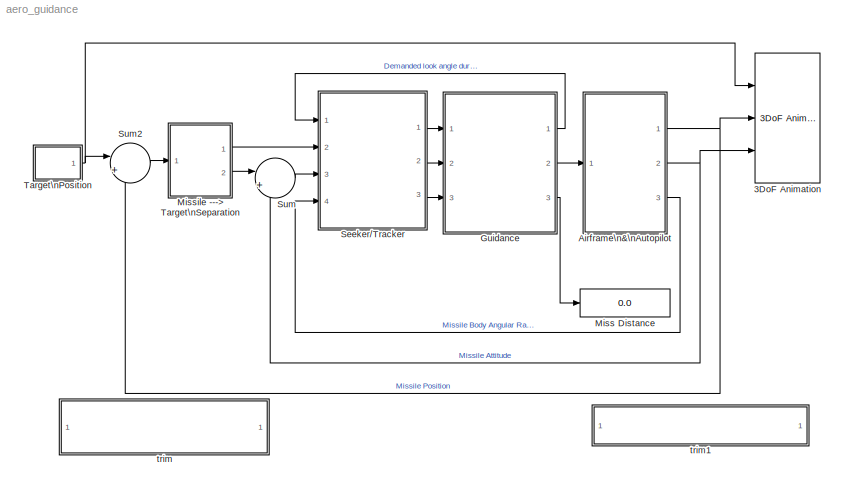
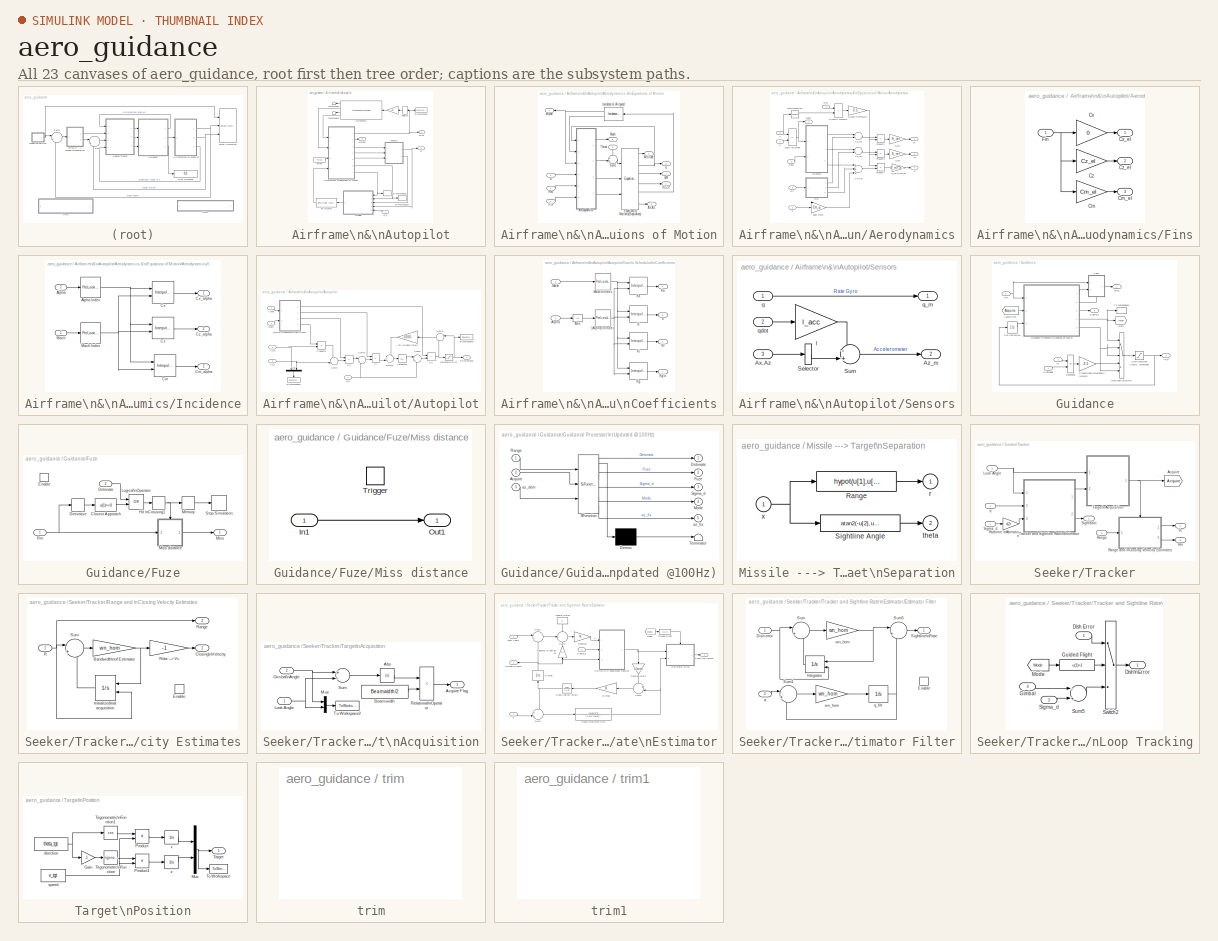
[diagram: thumbnail index - all 23 canvases of the model, root first then tree order]
MODEL aero_guidance
KIND model
CONFIG PreLoadFcn = aero_guid_dat
CONFIG StopFcn = aero_guid_plot
BLOCK [Reference] 3DoF Animation  REF=aerospace/Animation/3DoF Animation  (lib defined in mdl_cf564d925549, slx_1354fe9238a2, +3 more)
  Ports = [3]
  ShowPortLabels = on
  SourceBlock = aerospace/Animation/3DoF Animation
  SourceType = 3DoF Animation
  u1 = [0 5000 -2000 2000 -5050 -3050]
  u2 = 0.03
  u3 = 1.8
  u5 = Fly alongside
  u6 = [200 200 -50]
  u7 = 20
  u8 = on
BLOCK [SubSystem] Airframe\n&\nAutopilot
  MinAlgLoopOccurrences = off
  Ports = [1, 3]
  PropExecContextAcrossSSBoundary = on
  RTWSystemCode = Auto
  TreatAsAtomicUnit = off
BLOCK [SubSystem] Airframe\n&\nAutopilot/Aerodynamics &\nEquations of Motion
  MinAlgLoopOccurrences = off
  Ports = [4, 7]
  PropExecContextAcrossSSBoundary = on
  RTWSystemCode = Auto
  TreatAsAtomicUnit = off
BLOCK [Reference] Airframe\n&\nAutopilot/Aerodynamics &\nEquations of Motion/ Equations of Motion\n(Body Axes)  REF=aerospace/3DoF\nEquations\nof\nMotion / Equations of Motion\n(Body Axes)  (lib defined in mdl_cf564d925549, slx_1354fe9238a2, +3 more)
  Iyy = Iyy
  Ports = [3, 6]
  SourceBlock = aerospace/3DoF\nEquations\nof\nMotion / Equations of Motion\n(Body Axes)
  SourceType = 3 DOF equations of motion
  alpha_ini = alpha_ini
  g = g
  mass = mass
  pos_ini = [x_ini -h_ini]
  q_ini = q_ini
  theta_ini = theta_ini
  v_ini = v_ini
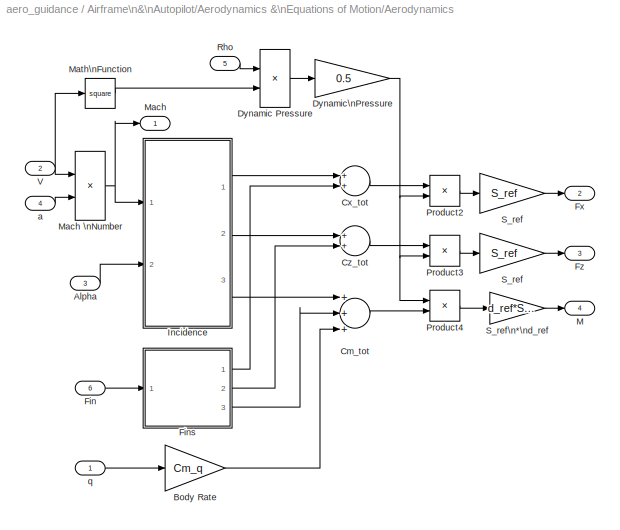
BLOCK [SubSystem] Airframe\n&\nAutopilot/Aerodynamics &\nEquations of Motion/Aerodynamics
  MinAlgLoopOccurrences = off
  Ports = [6, 4]
  PropExecContextAcrossSSBoundary = on
  RTWSystemCode = Auto
  TreatAsAtomicUnit = off
BLOCK [Outport] Airframe\n&\nAutopilot/Aerodynamics &\nEquations of Motion/Aerodynamics/ M
  IconDisplay = Port number
  InitialOutput = 0
  Port = 4
BLOCK [Outport] Airframe\n&\nAutopilot/Aerodynamics &\nEquations of Motion/Aerodynamics/ Mach
  IconDisplay = Port number
  InitialOutput = 0
BLOCK [Inport] Airframe\n&\nAutopilot/Aerodynamics &\nEquations of Motion/Aerodynamics/Alpha
  IconDisplay = Port number
  LatchInput = off
  Port = 3
BLOCK [Gain] Airframe\n&\nAutopilot/Aerodynamics &\nEquations of Motion/Aerodynamics/Body Rate
  Gain = Cm_q
BLOCK [Sum] Airframe\n&\nAutopilot/Aerodynamics &\nEquations of Motion/Aerodynamics/Cm_tot
  Inputs = +++
  Ports = [3, 1]
BLOCK [Sum] Airframe\n&\nAutopilot/Aerodynamics &\nEquations of Motion/Aerodynamics/Cx_tot
  Ports = [2, 1]
BLOCK [Sum] Airframe\n&\nAutopilot/Aerodynamics &\nEquations of Motion/Aerodynamics/Cz_tot
  Ports = [2, 1]
BLOCK [Product] Airframe\n&\nAutopilot/Aerodynamics &\nEquations of Motion/Aerodynamics/Dynamic Pressure
  Ports = [2, 1]
  RndMeth = Floor
BLOCK [Gain] Airframe\n&\nAutopilot/Aerodynamics &\nEquations of Motion/Aerodynamics/Dynamic\nPressure
  Gain = 0.5
BLOCK [Inport] Airframe\n&\nAutopilot/Aerodynamics &\nEquations of Motion/Aerodynamics/Fin
  IconDisplay = Port number
  LatchInput = off
  Port = 6
BLOCK [SubSystem] Airframe\n&\nAutopilot/Aerodynamics &\nEquations of Motion/Aerodynamics/Fins
  MinAlgLoopOccurrences = off
  Ports = [1, 3]
  PropExecContextAcrossSSBoundary = on
  RTWSystemCode = Auto
  TreatAsAtomicUnit = off
BLOCK [Gain] Airframe\n&\nAutopilot/Aerodynamics &\nEquations of Motion/Aerodynamics/Fins/Cm
  Gain = Cm_el
BLOCK [Outport] Airframe\n&\nAutopilot/Aerodynamics &\nEquations of Motion/Aerodynamics/Fins/Cm_el
  IconDisplay = Port number
  InitialOutput = 0
  Port = 3
BLOCK [Gain] Airframe\n&\nAutopilot/Aerodynamics &\nEquations of Motion/Aerodynamics/Fins/Cx
  Gain = 0
BLOCK [Outport] Airframe\n&\nAutopilot/Aerodynamics &\nEquations of Motion/Aerodynamics/Fins/Cx_el
  IconDisplay = Port number
  InitialOutput = 0
BLOCK [Gain] Airframe\n&\nAutopilot/Aerodynamics &\nEquations of Motion/Aerodynamics/Fins/Cz
  Gain = Cz_el
BLOCK [Outport] Airframe\n&\nAutopilot/Aerodynamics &\nEquations of Motion/Aerodynamics/Fins/Cz_el
  IconDisplay = Port number
  InitialOutput = 0
  Port = 2
BLOCK [Inport] Airframe\n&\nAutopilot/Aerodynamics &\nEquations of Motion/Aerodynamics/Fins/Fin
  IconDisplay = Port number
  LatchInput = off
  Port = 1
BLOCK [Outport] Airframe\n&\nAutopilot/Aerodynamics &\nEquations of Motion/Aerodynamics/Fx
  IconDisplay = Port number
  InitialOutput = [0]
  Port = 2
BLOCK [Outport] Airframe\n&\nAutopilot/Aerodynamics &\nEquations of Motion/Aerodynamics/Fz
  IconDisplay = Port number
  InitialOutput = 0
  Port = 3
BLOCK [SubSystem] Airframe\n&\nAutopilot/Aerodynamics &\nEquations of Motion/Aerodynamics/Incidence
  MinAlgLoopOccurrences = off
  Ports = [2, 3]
  PropExecContextAcrossSSBoundary = on
  RTWSystemCode = Auto
  TreatAsAtomicUnit = off
BLOCK [Inport] Airframe\n&\nAutopilot/Aerodynamics &\nEquations of Motion/Aerodynamics/Incidence/Alpha
  IconDisplay = Port number
  LatchInput = off
  Port = 2
BLOCK [Reference] Airframe\n&\nAutopilot/Aerodynamics &\nEquations of Motion/Aerodynamics/Incidence/Alpha Index  REF=simulink/Look-Up\nTables/PreLook-Up\nIndex Search
  Ports = [1, 1]
  SourceBlock = simulink/Look-Up\nTables/PreLook-Up\nIndex Search
  SourceType = LookupIdxSearch
  bpData = alpha_vec
  cacheBpFlag = on
  extrapMode = Linear Extrapolation
  outputFlag = off
  rangeErrorMode = None
  searchMode = Binary Search
BLOCK [Reference] Airframe\n&\nAutopilot/Aerodynamics &\nEquations of Motion/Aerodynamics/Incidence/Cm  REF=simulink/Look-Up\nTables/Interpolation (n-D)\nusing PreLook-Up
  Ports = [2, 1]
  SourceBlock = simulink/Look-Up\nTables/Interpolation (n-D)\nusing PreLook-Up
  SourceType = LookupNDInterpIdx
  explicitNumDims = 2
  extrapMethod = Linear
  interpMethod = Linear
  numDimsPopupSelect = 2
  rangeErrorMode = None
  table = Cm_alpha
BLOCK [Outport] Airframe\n&\nAutopilot/Aerodynamics &\nEquations of Motion/Aerodynamics/Incidence/Cm_alpha
  IconDisplay = Port number
  InitialOutput = 0
  Port = 3
BLOCK [Reference] Airframe\n&\nAutopilot/Aerodynamics &\nEquations of Motion/Aerodynamics/Incidence/Cx  REF=simulink/Look-Up\nTables/Interpolation (n-D)\nusing PreLook-Up
  Ports = [2, 1]
  SourceBlock = simulink/Look-Up\nTables/Interpolation (n-D)\nusing PreLook-Up
  SourceType = LookupNDInterpIdx
  explicitNumDims = 2
  extrapMethod = Linear
  interpMethod = Linear
  numDimsPopupSelect = 2
  rangeErrorMode = None
  table = Cx_alpha
BLOCK [Outport] Airframe\n&\nAutopilot/Aerodynamics &\nEquations of Motion/Aerodynamics/Incidence/Cx_alpha
  IconDisplay = Port number
  InitialOutput = 0
BLOCK [Reference] Airframe\n&\nAutopilot/Aerodynamics &\nEquations of Motion/Aerodynamics/Incidence/Cz  REF=simulink/Look-Up\nTables/Interpolation (n-D)\nusing PreLook-Up
  Ports = [2, 1]
  SourceBlock = simulink/Look-Up\nTables/Interpolation (n-D)\nusing PreLook-Up
  SourceType = LookupNDInterpIdx
  explicitNumDims = 2
  extrapMethod = Linear
  interpMethod = Linear
  numDimsPopupSelect = 2
  rangeErrorMode = None
  table = Cz_alpha
BLOCK [Outport] Airframe\n&\nAutopilot/Aerodynamics &\nEquations of Motion/Aerodynamics/Incidence/Cz_alpha
  IconDisplay = Port number
  InitialOutput = 0
  Port = 2
BLOCK [Inport] Airframe\n&\nAutopilot/Aerodynamics &\nEquations of Motion/Aerodynamics/Incidence/Mach
  IconDisplay = Port number
  LatchInput = off
  Port = 1
BLOCK [Reference] Airframe\n&\nAutopilot/Aerodynamics &\nEquations of Motion/Aerodynamics/Incidence/Mach Index  REF=simulink/Look-Up\nTables/PreLook-Up\nIndex Search
  Ports = [1, 1]
  SourceBlock = simulink/Look-Up\nTables/PreLook-Up\nIndex Search
  SourceType = LookupIdxSearch
  bpData = Mach_vec
  cacheBpFlag = on
  extrapMode = Linear Extrapolation
  outputFlag = off
  rangeErrorMode = None
  searchMode = Binary Search
BLOCK [Product] Airframe\n&\nAutopilot/Aerodynamics &\nEquations of Motion/Aerodynamics/Mach \nNumber
  Inputs = */
  Ports = [2, 1]
  RndMeth = Floor
BLOCK [Math] Airframe\n&\nAutopilot/Aerodynamics &\nEquations of Motion/Aerodynamics/Math\nFunction
  Operator = square
  Ports = [1, 1]
BLOCK [Product] Airframe\n&\nAutopilot/Aerodynamics &\nEquations of Motion/Aerodynamics/Product2
  Ports = [2, 1]
  RndMeth = Floor
BLOCK [Product] Airframe\n&\nAutopilot/Aerodynamics &\nEquations of Motion/Aerodynamics/Product3
  Ports = [2, 1]
  RndMeth = Floor
BLOCK [Product] Airframe\n&\nAutopilot/Aerodynamics &\nEquations of Motion/Aerodynamics/Product4
  Ports = [2, 1]
  RndMeth = Floor
BLOCK [Inport] Airframe\n&\nAutopilot/Aerodynamics &\nEquations of Motion/Aerodynamics/Rho
  IconDisplay = Port number
  LatchInput = off
  Port = 5
BLOCK [Gain] Airframe\n&\nAutopilot/Aerodynamics &\nEquations of Motion/Aerodynamics/S_ref
  Gain = S_ref
BLOCK [Gain] Airframe\n&\nAutopilot/Aerodynamics &\nEquations of Motion/Aerodynamics/S_ref 
  Gain = S_ref
BLOCK [Gain] Airframe\n&\nAutopilot/Aerodynamics &\nEquations of Motion/Aerodynamics/S_ref\n*\nd_ref
  Gain = d_ref*S_ref
BLOCK [Inport] Airframe\n&\nAutopilot/Aerodynamics &\nEquations of Motion/Aerodynamics/V
  IconDisplay = Port number
  LatchInput = off
  Port = 2
BLOCK [Inport] Airframe\n&\nAutopilot/Aerodynamics &\nEquations of Motion/Aerodynamics/a
  IconDisplay = Port number
  LatchInput = off
  Port = 4
BLOCK [Inport] Airframe\n&\nAutopilot/Aerodynamics &\nEquations of Motion/Aerodynamics/q
  IconDisplay = Port number
  LatchInput = off
  Port = 1
BLOCK [Outport] Airframe\n&\nAutopilot/Aerodynamics &\nEquations of Motion/Alpha
  IconDisplay = Port number
  InitialOutput = 0
  Port = 7
BLOCK [Outport] Airframe\n&\nAutopilot/Aerodynamics &\nEquations of Motion/Attitude
  IconDisplay = Port number
  InitialOutput = 0
  Port = 2
BLOCK [Outport] Airframe\n&\nAutopilot/Aerodynamics &\nEquations of Motion/Ax,Az
  IconDisplay = Port number
  InitialOutput = 0
  Port = 5
BLOCK [Inport] Airframe\n&\nAutopilot/Aerodynamics &\nEquations of Motion/Fin
  IconDisplay = Port number
  LatchInput = off
  Port = 4
BLOCK [Reference] Airframe\n&\nAutopilot/Aerodynamics &\nEquations of Motion/Incidence & Airspeed  REF=aerospace/3DoF\nEquations\nof\nMotion /Incidence \n& Airspeed  (lib defined in mdl_cf564d925549, slx_1354fe9238a2, +3 more)
  Ports = [1, 2]
  SourceBlock = aerospace/3DoF\nEquations\nof\nMotion /Incidence \n& Airspeed
  SourceType = Incidence and Airspeed
BLOCK [Outport] Airframe\n&\nAutopilot/Aerodynamics &\nEquations of Motion/Mach
  IconDisplay = Port number
  InitialOutput = 0
  Port = 6
BLOCK [Inport] Airframe\n&\nAutopilot/Aerodynamics &\nEquations of Motion/Rho
  IconDisplay = Port number
  LatchInput = off
  Port = 1
BLOCK [Sum] Airframe\n&\nAutopilot/Aerodynamics &\nEquations of Motion/Sum2
  IconShape = round
  Inputs = ++|
  Ports = [2, 1]
BLOCK [Inport] Airframe\n&\nAutopilot/Aerodynamics &\nEquations of Motion/Thrust
  IconDisplay = Port number
  LatchInput = off
  Port = 3
BLOCK [Outport] Airframe\n&\nAutopilot/Aerodynamics &\nEquations of Motion/Xe,Ze
  IconDisplay = Port number
  InitialOutput = 0
BLOCK [Inport] Airframe\n&\nAutopilot/Aerodynamics &\nEquations of Motion/a
  IconDisplay = Port number
  LatchInput = off
  Port = 2
BLOCK [Outport] Airframe\n&\nAutopilot/Aerodynamics &\nEquations of Motion/q
  IconDisplay = Port number
  InitialOutput = 0
  Port = 3
BLOCK [Outport] Airframe\n&\nAutopilot/Aerodynamics &\nEquations of Motion/qdot
  IconDisplay = Port number
  InitialOutput = 0
  Port = 4
BLOCK [Reference] Airframe\n&\nAutopilot/Atmosphere  REF=aerospace/Atmosphere/Atmosphere\nmodel  (lib defined in mdl_cf564d925549, slx_1354fe9238a2, +3 more)
  Ports = [1, 4]
  SourceBlock = aerospace/Atmosphere/Atmosphere\nmodel
  SourceType = Atmosphere Model
BLOCK [Outport] Airframe\n&\nAutopilot/Attitude
  IconDisplay = Port number
  InitialOutput = 0
  Port = 2
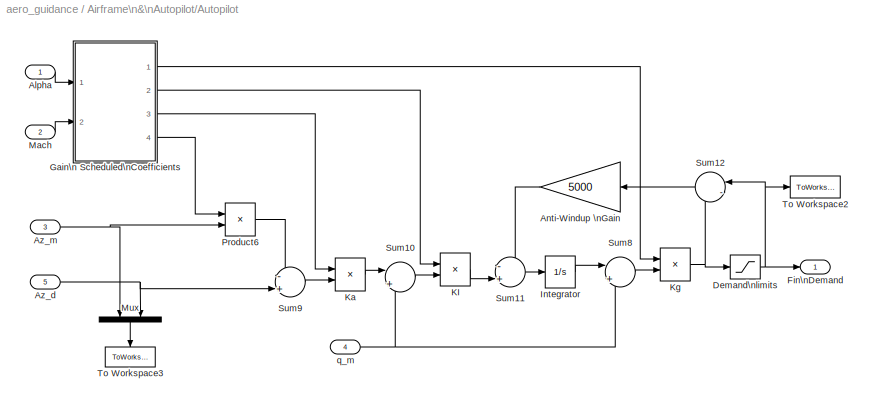
BLOCK [SubSystem] Airframe\n&\nAutopilot/Autopilot
  MinAlgLoopOccurrences = off
  Ports = [5, 1]
  PropExecContextAcrossSSBoundary = on
  RTWSystemCode = Auto
  TreatAsAtomicUnit = off
BLOCK [Inport] Airframe\n&\nAutopilot/Autopilot/Alpha
  IconDisplay = Port number
  LatchInput = off
  Port = 1
BLOCK [Gain] Airframe\n&\nAutopilot/Autopilot/Anti-Windup \nGain
  Gain = 5000
BLOCK [Inport] Airframe\n&\nAutopilot/Autopilot/Az_d
  IconDisplay = Port number
  LatchInput = off
  Port = 5
BLOCK [Inport] Airframe\n&\nAutopilot/Autopilot/Az_m
  IconDisplay = Port number
  LatchInput = off
  Port = 3
BLOCK [Saturate] Airframe\n&\nAutopilot/Autopilot/Demand\nlimits 
  LowerLimit = fin_min
  UpperLimit = fin_max
BLOCK [Outport] Airframe\n&\nAutopilot/Autopilot/Fin\nDemand
  IconDisplay = Port number
  InitialOutput = 0
BLOCK [SubSystem] Airframe\n&\nAutopilot/Autopilot/Gain\n Scheduled\nCoefficients
  MinAlgLoopOccurrences = off
  Ports = [2, 4]
  PropExecContextAcrossSSBoundary = on
  RTWSystemCode = Auto
  TreatAsAtomicUnit = off
BLOCK [Abs] Airframe\n&\nAutopilot/Autopilot/Gain\n Scheduled\nCoefficients/Abs
BLOCK [Inport] Airframe\n&\nAutopilot/Autopilot/Gain\n Scheduled\nCoefficients/Alpha
  IconDisplay = Port number
  LatchInput = off
  Port = 1
BLOCK [Reference] Airframe\n&\nAutopilot/Autopilot/Gain\n Scheduled\nCoefficients/K  REF=simulink/Look-Up\nTables/Interpolation (n-D)\nusing PreLook-Up
  Ports = [2, 1]
  SourceBlock = simulink/Look-Up\nTables/Interpolation (n-D)\nusing PreLook-Up
  SourceType = LookupNDInterpIdx
  explicitNumDims = 2
  extrapMethod = Linear
  interpMethod = Linear
  numDimsPopupSelect = 2
  rangeErrorMode = None
  table = K
BLOCK [Outport] Airframe\n&\nAutopilot/Autopilot/Gain\n Scheduled\nCoefficients/K 
  IconDisplay = Port number
  InitialOutput = 0
  Port = 3
BLOCK [Outport] Airframe\n&\nAutopilot/Autopilot/Gain\n Scheduled\nCoefficients/KI 
  IconDisplay = Port number
  InitialOutput = 0
  Port = 2
BLOCK [Reference] Airframe\n&\nAutopilot/Autopilot/Gain\n Scheduled\nCoefficients/Ka  REF=simulink/Look-Up\nTables/Interpolation (n-D)\nusing PreLook-Up
  Ports = [2, 1]
  SourceBlock = simulink/Look-Up\nTables/Interpolation (n-D)\nusing PreLook-Up
  SourceType = LookupNDInterpIdx
  explicitNumDims = 2
  extrapMethod = Linear
  interpMethod = Linear
  numDimsPopupSelect = 2
  rangeErrorMode = None
  table = Ka
BLOCK [Outport] Airframe\n&\nAutopilot/Autopilot/Gain\n Scheduled\nCoefficients/Ka 
  IconDisplay = Port number
  InitialOutput = 0
  Port = 4
BLOCK [Reference] Airframe\n&\nAutopilot/Autopilot/Gain\n Scheduled\nCoefficients/Kg  REF=simulink/Look-Up\nTables/Interpolation (n-D)\nusing PreLook-Up
  Ports = [2, 1]
  SourceBlock = simulink/Look-Up\nTables/Interpolation (n-D)\nusing PreLook-Up
  SourceType = LookupNDInterpIdx
  explicitNumDims = 2
  extrapMethod = Linear
  interpMethod = Linear
  numDimsPopupSelect = 2
  rangeErrorMode = None
  table = Kg
BLOCK [Outport] Airframe\n&\nAutopilot/Autopilot/Gain\n Scheduled\nCoefficients/Kg\n
  IconDisplay = Port number
  InitialOutput = 0
BLOCK [Reference] Airframe\n&\nAutopilot/Autopilot/Gain\n Scheduled\nCoefficients/Ki  REF=simulink/Look-Up\nTables/Interpolation (n-D)\nusing PreLook-Up
  Ports = [2, 1]
  SourceBlock = simulink/Look-Up\nTables/Interpolation (n-D)\nusing PreLook-Up
  SourceType = LookupNDInterpIdx
  explicitNumDims = 2
  extrapMethod = Linear
  interpMethod = Linear
  numDimsPopupSelect = 2
  rangeErrorMode = None
  table = Ki
BLOCK [Inport] Airframe\n&\nAutopilot/Autopilot/Gain\n Scheduled\nCoefficients/Mach
  IconDisplay = Port number
  LatchInput = off
  Port = 2
BLOCK [Reference] Airframe\n&\nAutopilot/Autopilot/Gain\n Scheduled\nCoefficients/Mach\nIndex  REF=simulink/Look-Up\nTables/PreLook-Up\nIndex Search
  Ports = [1, 1]
  SourceBlock = simulink/Look-Up\nTables/PreLook-Up\nIndex Search
  SourceType = LookupIdxSearch
  bpData = M_sch
  cacheBpFlag = on
  extrapMode = Linear Extrapolation
  outputFlag = off
  rangeErrorMode = None
  searchMode = Binary Search
BLOCK [Reference] Airframe\n&\nAutopilot/Autopilot/Gain\n Scheduled\nCoefficients/|Alpha|\nIndex  REF=simulink/Look-Up\nTables/PreLook-Up\nIndex Search
  Ports = [1, 1]
  SourceBlock = simulink/Look-Up\nTables/PreLook-Up\nIndex Search
  SourceType = LookupIdxSearch
  bpData = alpha_sch
  cacheBpFlag = on
  extrapMode = Linear Extrapolation
  outputFlag = off
  rangeErrorMode = None
  searchMode = Binary Search
BLOCK [Integrator] Airframe\n&\nAutopilot/Autopilot/Integrator
  Ports = [1, 1]
BLOCK [Product] Airframe\n&\nAutopilot/Autopilot/KI
  Ports = [2, 1]
  RndMeth = Floor
BLOCK [Product] Airframe\n&\nAutopilot/Autopilot/Ka
  Ports = [2, 1]
  RndMeth = Floor
BLOCK [Product] Airframe\n&\nAutopilot/Autopilot/Kg
  Ports = [2, 1]
  RndMeth = Floor
BLOCK [Inport] Airframe\n&\nAutopilot/Autopilot/Mach
  IconDisplay = Port number
  LatchInput = off
  Port = 2
BLOCK [Mux] Airframe\n&\nAutopilot/Autopilot/Mux
  DisplayOption = bar
  Inputs = 2
  Ports = [2, 1]
BLOCK [Product] Airframe\n&\nAutopilot/Autopilot/Product6
  Ports = [2, 1]
  RndMeth = Floor
BLOCK [Sum] Airframe\n&\nAutopilot/Autopilot/Sum10
  IconShape = round
  Inputs = |++
  Ports = [2, 1]
BLOCK [Sum] Airframe\n&\nAutopilot/Autopilot/Sum11
  IconShape = round
  Inputs = -+|
  Ports = [2, 1]
BLOCK [Sum] Airframe\n&\nAutopilot/Autopilot/Sum12
  IconShape = round
  Inputs = |-+
  Ports = [2, 1]
BLOCK [Sum] Airframe\n&\nAutopilot/Autopilot/Sum8
  IconShape = round
  Inputs = |++
  Ports = [2, 1]
BLOCK [Sum] Airframe\n&\nAutopilot/Autopilot/Sum9
  IconShape = round
  Inputs = -+|
  Ports = [2, 1]
BLOCK [ToWorkspace] Airframe\n&\nAutopilot/Autopilot/To Workspace2
  MaxDataPoints = inf
  SampleTime = -1
  SaveFormat = Structure With Time
  VariableName = Fin_dem
BLOCK [ToWorkspace] Airframe\n&\nAutopilot/Autopilot/To Workspace3
  MaxDataPoints = inf
  SampleTime = -1
  SaveFormat = Structure With Time
  VariableName = Latax
BLOCK [Inport] Airframe\n&\nAutopilot/Autopilot/q_m
  IconDisplay = Port number
  LatchInput = off
  Port = 4
BLOCK [Inport] Airframe\n&\nAutopilot/Az_d
  IconDisplay = Port number
  LatchInput = off
  Port = 1
BLOCK [Reference] Airframe\n&\nAutopilot/Fin Actuator  REF=aerospace/Actuators/2nd Order Non-linear Actuator  (lib defined in mdl_cf564d925549, slx_1354fe9238a2, +3 more)
  Ports = [1, 1]
  SourceBlock = aerospace/Actuators/2nd Order Non-linear Actuator
  SourceType = Nonlinear 2nd order actuator model
  fin_act_0 = fin_act_0
  fin_max = fin_max
  fin_maxrate = fin_maxrate
  fin_min = fin_min
  wn_fin = wn_fin
  z_fin = z_fin
BLOCK [Selector] Airframe\n&\nAutopilot/Selector
  Elements = [2]
  InputPortWidth = 2
  Ports = [1, 1]
BLOCK [SubSystem] Airframe\n&\nAutopilot/Sensors
  MinAlgLoopOccurrences = off
  Ports = [3, 2]
  PropExecContextAcrossSSBoundary = on
  RTWSystemCode = Auto
  TreatAsAtomicUnit = off
BLOCK [Inport] Airframe\n&\nAutopilot/Sensors/Ax,Az
  IconDisplay = Port number
  LatchInput = off
  Port = 3
BLOCK [Outport] Airframe\n&\nAutopilot/Sensors/Az_m
  IconDisplay = Port number
  InitialOutput = 0
  Port = 2
BLOCK [Selector] Airframe\n&\nAutopilot/Sensors/Selector
  Elements = [2]
  InputPortWidth = 2
  Ports = [1, 1]
BLOCK [Sum] Airframe\n&\nAutopilot/Sensors/Sum
  IconShape = round
  Inputs = -+|
  Ports = [2, 1]
BLOCK [Gain] Airframe\n&\nAutopilot/Sensors/l
  Gain = l_acc
BLOCK [Inport] Airframe\n&\nAutopilot/Sensors/q
  IconDisplay = Port number
  LatchInput = off
  Port = 1
BLOCK [Outport] Airframe\n&\nAutopilot/Sensors/q_m
  IconDisplay = Port number
  InitialOutput = 0
BLOCK [Inport] Airframe\n&\nAutopilot/Sensors/qdot
  IconDisplay = Port number
  LatchInput = off
  Port = 2
BLOCK [Constant] Airframe\n&\nAutopilot/Thrust
  Value = Thrust
BLOCK [ToWorkspace] Airframe\n&\nAutopilot/To Workspace
  MaxDataPoints = inf
  SampleTime = -1
  SaveFormat = Structure With Time
  VariableName = Miss_pos
BLOCK [ToWorkspace] Airframe\n&\nAutopilot/To Workspace1
  MaxDataPoints = inf
  SampleTime = -1
  SaveFormat = Structure With Time
  VariableName = Mach
BLOCK [ToWorkspace] Airframe\n&\nAutopilot/To Workspace2
  MaxDataPoints = inf
  SampleTime = -1
  SaveFormat = Structure With Time
  VariableName = Incid
BLOCK [Outport] Airframe\n&\nAutopilot/Xe,Ze
  IconDisplay = Port number
  InitialOutput = 0
BLOCK [Gain] Airframe\n&\nAutopilot/l
  Gain = -1
BLOCK [Outport] Airframe\n&\nAutopilot/q
  IconDisplay = Port number
  InitialOutput = 0
  Port = 3
BLOCK [Terminator] Airframe\n&\nAutopilot/tempscope1
BLOCK [Terminator] Airframe\n&\nAutopilot/tempscope2
BLOCK [SubSystem] Guidance
  MinAlgLoopOccurrences = off
  Ports = [3, 3]
  PropExecContextAcrossSSBoundary = on
  RTWSystemCode = Auto
  TreatAsAtomicUnit = off
BLOCK [UnitDelay] Guidance/0.01 Sec\nHold
  SampleTime = 0.01
BLOCK [From] Guidance/Acquisition 
  DialogController = Simulink.DDGSource
  GotoTag = Acquire
BLOCK [Outport] Guidance/Az_d
  IconDisplay = Port number
  Port = 2
BLOCK [Product] Guidance/Demands
  Ports = [2, 1]
  RndMeth = Floor
BLOCK [SubSystem] Guidance/Fuze
  MinAlgLoopOccurrences = off
  Ports = [2, 1, 1]
  PropExecContextAcrossSSBoundary = on
  RTWSystemCode = Auto
  ShowPortLabels = off
  TreatAsAtomicUnit = on
BLOCK [Fcn] Guidance/Fuze/Closest Approach
  Expr = u(1)>=0
BLOCK [Derivative] Guidance/Fuze/Derivative
BLOCK [Inport] Guidance/Fuze/Detonate
  IconDisplay = Port number
  LatchInput = off
  Port = 2
BLOCK [EnablePort] Guidance/Fuze/Enable
  Ports = []
BLOCK [HitCross] Guidance/Fuze/Hit \nCrossing1
  HitCrossingDirection = rising
  Ports = [1, 1]
BLOCK [Logic] Guidance/Fuze/Logical\nOperator
  Operator = OR
  Ports = [2, 1]
BLOCK [Memory] Guidance/Fuze/Memory
BLOCK [Outport] Guidance/Fuze/Miss 
  IconDisplay = Port number
BLOCK [SubSystem] Guidance/Fuze/Miss distance
  MinAlgLoopOccurrences = off
  Ports = [1, 1, 0, 1]
  PropExecContextAcrossSSBoundary = on
  RTWSystemCode = Auto
  ShowPortLabels = off
  TreatAsAtomicUnit = on
BLOCK [Inport] Guidance/Fuze/Miss distance/In1
  IconDisplay = Port number
  LatchInput = off
  Port = 1
BLOCK [Outport] Guidance/Fuze/Miss distance/Out1
  IconDisplay = Port number
BLOCK [TriggerPort] Guidance/Fuze/Miss distance/Trigger
  Ports = []
BLOCK [Inport] Guidance/Fuze/Rm
  IconDisplay = Port number
  LatchInput = off
  Port = 1
BLOCK [Stop] Guidance/Fuze/Stop Simulation
BLOCK [Goto] Guidance/Goto
  DialogController = Simulink.DDGSource
  GotoTag = Mode
  TagVisibility = global
BLOCK [SubSystem] Guidance/Guidance Processor\n(Updated @100Hz)
  MaskDescription = Stateflow diagram
  MaskDisplay = plot(sf('Private','sfblk','xIcon'),sf('Private','sfblk','yIcon'));text(0.5,0,sf('Private', 'sfblk', 'tIcon'),'HorizontalAl','Center','VerticalAl','Bottom');
  MaskIconFrame = off
  MaskIconOpaque = off
  MaskIconRotate = none
  MaskIconUnits = autoscale
  MaskSelfModifiable = on
  MaskType = Stateflow
  MinAlgLoopOccurrences = off
  Ports = [3, 5]
  PropExecContextAcrossSSBoundary = on
  RTWSystemCode = Auto
  TreatAsAtomicUnit = off
BLOCK [Demux] Guidance/Guidance Processor\n(Updated @100Hz)/ Demux 
  Outputs = 1
  Ports = [1, 1]
BLOCK [S-Function] Guidance/Guidance Processor\n(Updated @100Hz)/ SFunction 
  FunctionName = sf_sfun
  PortCounts = [3 6]
  Ports = [3, 6]
  Tag = Stateflow S-Function aero_guidance 1
BLOCK [Terminator] Guidance/Guidance Processor\n(Updated @100Hz)/ Terminator 
BLOCK [Inport] Guidance/Guidance Processor\n(Updated @100Hz)/Acquire
  IconDisplay = Port number
  LatchInput = off
  Port = 2
BLOCK [Outport] Guidance/Guidance Processor\n(Updated @100Hz)/Detonate
  IconDisplay = Port number
BLOCK [Outport] Guidance/Guidance Processor\n(Updated @100Hz)/Fuze
  IconDisplay = Port number
  Port = 2
BLOCK [Outport] Guidance/Guidance Processor\n(Updated @100Hz)/Mode
  IconDisplay = Port number
  Port = 4
BLOCK [Inport] Guidance/Guidance Processor\n(Updated @100Hz)/Range
  IconDisplay = Port number
  LatchInput = off
  Port = 1
BLOCK [Outport] Guidance/Guidance Processor\n(Updated @100Hz)/Sigma_d
  IconDisplay = Port number
  Port = 3
BLOCK [Inport] Guidance/Guidance Processor\n(Updated @100Hz)/az_dem
  IconDisplay = Port number
  LatchInput = off
  Port = 3
BLOCK [Outport] Guidance/Guidance Processor\n(Updated @100Hz)/az_fix
  IconDisplay = Port number
  Port = 5
BLOCK [Saturate] Guidance/Limit\nNormal Acceleration\nDemand 
  LowerLimit = -max_acc
  UpperLimit = max_acc
BLOCK [Outport] Guidance/Miss
  IconDisplay = Port number
  Port = 3
BLOCK [MultiPortSwitch] Guidance/Multiport\nSwitch
  Ports = [5, 1]
BLOCK [Gain] Guidance/Proportional\nNavigation\nGain
  Gain = -3.5
BLOCK [Inport] Guidance/Rm
  IconDisplay = Port number
  LatchInput = off
  Port = 3
BLOCK [Outport] Guidance/Sigma_d
  IconDisplay = Port number
BLOCK [Inport] Guidance/Sigmadot
  IconDisplay = Port number
  LatchInput = off
  Port = 1
BLOCK [ToWorkspace] Guidance/To Workspace1
  MaxDataPoints = inf
  SaveFormat = Structure With Time
  VariableName = Mode
BLOCK [Inport] Guidance/Vc
  IconDisplay = Port number
  LatchInput = off
  Port = 2
BLOCK [Display] Miss Distance
  Decimation = 1
  Ports = [1]
BLOCK [SubSystem] Missile ---> Target\nSeparation
  MaskDescription = Transformation from cartesian to polar coordinates.\n[x, y] -> [r, theta]\n\nr = sqrt(x^2 + y^2);\ntheta = atan(y/x);
  MaskDisplay = plot(0,0,100,100,[24,20,15,20,20],[85,95,85,95,20],[80,20,95,85,95,85],[70,20,20,15,20,24],[56,56,55,52,50,46],[20,26,31,35,38,42])
  MaskHelp = Unmask this block for more help.
  MaskIconFrame = on
  MaskIconOpaque = on
  MaskIconRotate = none
  MaskIconUnits = autoscale
  MaskType = Cart2Polar
  MinAlgLoopOccurrences = off
  Ports = [1, 2]
  PropExecContextAcrossSSBoundary = on
  RTWSystemCode = Auto
  TreatAsAtomicUnit = off
BLOCK [Fcn] Missile ---> Target\nSeparation/Range
  Expr = hypot(u[1],u[2])
BLOCK [Fcn] Missile ---> Target\nSeparation/Sightline Angle
  Expr = atan2(-u[2],u[1])
BLOCK [Outport] Missile ---> Target\nSeparation/r
  IconDisplay = Port number
  InitialOutput = 0
BLOCK [Outport] Missile ---> Target\nSeparation/theta
  IconDisplay = Port number
  InitialOutput = 0
  Port = 2
BLOCK [Inport] Missile ---> Target\nSeparation/x
  IconDisplay = Port number
  LatchInput = off
  Port = 1
BLOCK [SubSystem] Seeker//Tracker
  MinAlgLoopOccurrences = off
  Ports = [4, 3]
  PropExecContextAcrossSSBoundary = on
  RTWSystemCode = Auto
  TreatAsAtomicUnit = off
BLOCK [Goto] Seeker//Tracker/Acquire
  DialogController = Simulink.DDGSource
  GotoTag = Acquire
  TagVisibility = global
BLOCK [Inport] Seeker//Tracker/Look Angle
  IconDisplay = Port number
  LatchInput = off
  Port = 3
BLOCK [Gain] Seeker//Tracker/Radome \nAberation
  Gain = d2r
BLOCK [Inport] Seeker//Tracker/Range
  IconDisplay = Port number
  LatchInput = off
  Port = 2
BLOCK [SubSystem] Seeker//Tracker/Range and \nClosing Velocity Estimates
  MinAlgLoopOccurrences = off
  Ports = [1, 2, 1]
  PropExecContextAcrossSSBoundary = on
  RTWSystemCode = Auto
  TreatAsAtomicUnit = on
BLOCK [Gain] Seeker//Tracker/Range and \nClosing Velocity Estimates/Bandwidth\nof Estimator
  Gain = wn_hom
BLOCK [Outport] Seeker//Tracker/Range and \nClosing Velocity Estimates/Closing\nVelocity
  IconDisplay = Port number
  InitialOutput = 0
BLOCK [EnablePort] Seeker//Tracker/Range and \nClosing Velocity Estimates/Enable
  Ports = []
  StatesWhenEnabling = reset
BLOCK [Integrator] Seeker//Tracker/Range and \nClosing Velocity Estimates/Initialized\nat acquisition
  InitialConditionSource = external
  Ports = [2, 1]
BLOCK [Inport] Seeker//Tracker/Range and \nClosing Velocity Estimates/R
  IconDisplay = Port number
  LatchInput = off
  Port = 1
BLOCK [Outport] Seeker//Tracker/Range and \nClosing Velocity Estimates/Range
  IconDisplay = Port number
  InitialOutput = 0
  Port = 2
BLOCK [Gain] Seeker//Tracker/Range and \nClosing Velocity Estimates/Rdot ---> Vc
  Gain = -1
BLOCK [Sum] Seeker//Tracker/Range and \nClosing Velocity Estimates/Sum
  IconShape = round
  Inputs = |+-
  Ports = [2, 1]
BLOCK [Outport] Seeker//Tracker/Rm
  IconDisplay = Port number
  Port = 3
BLOCK [Inport] Seeker//Tracker/Sigma_d
  IconDisplay = Port number
  LatchInput = off
  Port = 1
BLOCK [Outport] Seeker//Tracker/Sigmadot
  IconDisplay = Port number
BLOCK [SubSystem] Seeker//Tracker/Target\nAcquisition
  MinAlgLoopOccurrences = off
  Ports = [2, 1]
  PropExecContextAcrossSSBoundary = on
  RTWSystemCode = Auto
  TreatAsAtomicUnit = off
BLOCK [Abs] Seeker//Tracker/Target\nAcquisition/Abs
BLOCK [Outport] Seeker//Tracker/Target\nAcquisition/Acquire Flag
  IconDisplay = Port number
BLOCK [Constant] Seeker//Tracker/Target\nAcquisition/Beamwidth
  Value = Beamwidth/2
BLOCK [Inport] Seeker//Tracker/Target\nAcquisition/Gimbal\nAngle
  IconDisplay = Port number
  LatchInput = off
  Port = 2
BLOCK [Inport] Seeker//Tracker/Target\nAcquisition/Look Angle
  IconDisplay = Port number
  LatchInput = off
  Port = 1
BLOCK [Mux] Seeker//Tracker/Target\nAcquisition/Mux
  DisplayOption = bar
  Inputs = 2
  Ports = [2, 1]
BLOCK [RelationalOperator] Seeker//Tracker/Target\nAcquisition/Relational\nOperator
  Operator = <
BLOCK [Sum] Seeker//Tracker/Target\nAcquisition/Sum
  Inputs = +-
  Ports = [2, 1]
BLOCK [ToWorkspace] Seeker//Tracker/Target\nAcquisition/To Workspace2
  MaxDataPoints = inf
  SampleTime = -1
  SaveFormat = Structure With Time
  VariableName = Gimbal
BLOCK [SubSystem] Seeker//Tracker/Tracker and Sightline Rate\nEstimator
  MinAlgLoopOccurrences = off
  Ports = [3, 2]
  PropExecContextAcrossSSBoundary = on
  RTWSystemCode = Auto
  TreatAsAtomicUnit = off
BLOCK [Constant] Seeker//Tracker/Tracker and Sightline Rate\nEstimator/Angular Noise
  Value = 0
BLOCK [SubSystem] Seeker//Tracker/Tracker and Sightline Rate\nEstimator/Estimator Filter
  MinAlgLoopOccurrences = off
  Ports = [2, 1, 1]
  PropExecContextAcrossSSBoundary = on
  RTWSystemCode = Auto
  TreatAsAtomicUnit = on
BLOCK [Inport] Seeker//Tracker/Tracker and Sightline Rate\nEstimator/Estimator Filter/Dish error
  IconDisplay = Port number
  LatchInput = off
  Port = 1
BLOCK [EnablePort] Seeker//Tracker/Tracker and Sightline Rate\nEstimator/Estimator Filter/Enable
  Ports = []
  StatesWhenEnabling = reset
BLOCK [Integrator] Seeker//Tracker/Tracker and Sightline Rate\nEstimator/Estimator Filter/Integrator
  InitialConditionSource = external
  Ports = [2, 1]
BLOCK [Outport] Seeker//Tracker/Tracker and Sightline Rate\nEstimator/Estimator Filter/Sightline\nRate
  IconDisplay = Port number
  InitialOutput = 0
BLOCK [Sum] Seeker//Tracker/Tracker and Sightline Rate\nEstimator/Estimator Filter/Sum
  IconShape = round
  Inputs = |+-
  Ports = [2, 1]
BLOCK [Sum] Seeker//Tracker/Tracker and Sightline Rate\nEstimator/Estimator Filter/Sum1
  IconShape = round
  Inputs = |+-
  Ports = [2, 1]
BLOCK [Sum] Seeker//Tracker/Tracker and Sightline Rate\nEstimator/Estimator Filter/Sum5
  IconShape = round
  Inputs = |++
  Ports = [2, 1]
BLOCK [Inport] Seeker//Tracker/Tracker and Sightline Rate\nEstimator/Estimator Filter/q
  IconDisplay = Port number
  LatchInput = off
  Port = 2
BLOCK [Integrator] Seeker//Tracker/Tracker and Sightline Rate\nEstimator/Estimator Filter/q_filt
  Ports = [1, 1]
BLOCK [Gain] Seeker//Tracker/Tracker and Sightline Rate\nEstimator/Estimator Filter/wn_hom
  Gain = wn_hom
BLOCK [Gain] Seeker//Tracker/Tracker and Sightline Rate\nEstimator/Estimator Filter/wn_hom  
  Gain = wn_hom
BLOCK [Gain] Seeker//Tracker/Tracker and Sightline Rate\nEstimator/Gimbal
BLOCK [Integrator] Seeker//Tracker/Tracker and Sightline Rate\nEstimator/Gimbal 
  LimitOutput = on
  LowerSaturationLimit = min_gimbal
  Ports = [1, 1]
  UpperSaturationLimit = max_gimbal
BLOCK [Outport] Seeker//Tracker/Tracker and Sightline Rate\nEstimator/Gimbal\nAngle 
  IconDisplay = Port number
BLOCK [Fcn] Seeker//Tracker/Tracker and Sightline Rate\nEstimator/Guided Flight
  Expr = u(1)>1
BLOCK [Inport] Seeker//Tracker/Tracker and Sightline Rate\nEstimator/Look Angle
  IconDisplay = Port number
  LatchInput = off
  Port = 1
BLOCK [From] Seeker//Tracker/Tracker and Sightline Rate\nEstimator/Mode
  DialogController = Simulink.DDGSource
  GotoTag = Mode
BLOCK [Gain] Seeker//Tracker/Tracker and Sightline Rate\nEstimator/Radome \nAberration
  Gain = K_r
BLOCK [Gain] Seeker//Tracker/Tracker and Sightline Rate\nEstimator/Receiver
BLOCK [Outport] Seeker//Tracker/Tracker and Sightline Rate\nEstimator/Sightline \nRate
  IconDisplay = Port number
  Port = 2
BLOCK [Inport] Seeker//Tracker/Tracker and Sightline Rate\nEstimator/Sigma_d
  IconDisplay = Port number
  LatchInput = off
  Port = 3
BLOCK [TransferFcn] Seeker//Tracker/Tracker and Sightline Rate\nEstimator/Stabilization \nGain
  Denominator = [1 0]
  Numerator = [Ks]
BLOCK [TransferFcn] Seeker//Tracker/Tracker and Sightline Rate\nEstimator/Stabilizing Rate Gyro
  Denominator = [1 2*0.7*wgyro wgyro^2]
  Numerator = [wgyro^2]
BLOCK [Sum] Seeker//Tracker/Tracker and Sightline Rate\nEstimator/Sum1
  IconShape = round
  Inputs = |+-
  Ports = [2, 1]
BLOCK [Sum] Seeker//Tracker/Tracker and Sightline Rate\nEstimator/Sum2
  IconShape = round
  Inputs = +++
  Ports = [3, 1]
BLOCK [Sum] Seeker//Tracker/Tracker and Sightline Rate\nEstimator/Sum3
  IconShape = round
  Inputs = +-|
  Ports = [2, 1]
BLOCK [Sum] Seeker//Tracker/Tracker and Sightline Rate\nEstimator/Sum4
  IconShape = round
  Inputs = ++|
  Ports = [2, 1]
BLOCK [SubSystem] Seeker//Tracker/Tracker and Sightline Rate\nEstimator/Switch to Closed\nLoop Tracking
  MinAlgLoopOccurrences = off
  Ports = [3, 1]
  PropExecContextAcrossSSBoundary = on
  RTWSystemCode = Auto
  TreatAsAtomicUnit = off
BLOCK [Inport] Seeker//Tracker/Tracker and Sightline Rate\nEstimator/Switch to Closed\nLoop Tracking/Dish Error
  IconDisplay = Port number
  LatchInput = off
  Port = 1
BLOCK [Outport] Seeker//Tracker/Tracker and Sightline Rate\nEstimator/Switch to Closed\nLoop Tracking/Dish\nError
  IconDisplay = Port number
BLOCK [Inport] Seeker//Tracker/Tracker and Sightline Rate\nEstimator/Switch to Closed\nLoop Tracking/Gimbal
  IconDisplay = Port number
  LatchInput = off
  Port = 3
BLOCK [Fcn] Seeker//Tracker/Tracker and Sightline Rate\nEstimator/Switch to Closed\nLoop Tracking/Guided Flight
  Expr = u(1)>1
BLOCK [From] Seeker//Tracker/Tracker and Sightline Rate\nEstimator/Switch to Closed\nLoop Tracking/Mode
  DialogController = Simulink.DDGSource
  GotoTag = Mode
BLOCK [Inport] Seeker//Tracker/Tracker and Sightline Rate\nEstimator/Switch to Closed\nLoop Tracking/Sigma_d
  IconDisplay = Port number
  LatchInput = off
  Port = 2
BLOCK [Sum] Seeker//Tracker/Tracker and Sightline Rate\nEstimator/Switch to Closed\nLoop Tracking/Sum5
  Inputs = -+
  Ports = [2, 1]
BLOCK [Switch] Seeker//Tracker/Tracker and Sightline Rate\nEstimator/Switch to Closed\nLoop Tracking/Switch2
  Threshold = 0.5
BLOCK [Gain] Seeker//Tracker/Tracker and Sightline Rate\nEstimator/Tracking\nGain
  Gain = 1/tors
BLOCK [Inport] Seeker//Tracker/Tracker and Sightline Rate\nEstimator/q
  IconDisplay = Port number
  LatchInput = off
  Port = 2
BLOCK [Outport] Seeker//Tracker/Vc
  IconDisplay = Port number
  Port = 2
BLOCK [Inport] Seeker//Tracker/q
  IconDisplay = Port number
  LatchInput = off
  Port = 4
BLOCK [Sum] Sum
  IconShape = round
  Inputs = |+-
  Ports = [2, 1]
BLOCK [Sum] Sum2
  IconShape = round
  Inputs = |+-
  Ports = [2, 1]
BLOCK [SubSystem] Target\nPosition
  MinAlgLoopOccurrences = off
  Ports = [0, 1]
  PropExecContextAcrossSSBoundary = on
  RTWSystemCode = Auto
  TreatAsAtomicUnit = off
BLOCK [Gain] Target\nPosition/Gain
  Gain = -1
BLOCK [Mux] Target\nPosition/Mux
  DisplayOption = bar
  Inputs = 2
  Ports = [2, 1]
BLOCK [Product] Target\nPosition/Product
  Ports = [2, 1]
  RndMeth = Floor
BLOCK [Product] Target\nPosition/Product1
  Ports = [2, 1]
  RndMeth = Floor
BLOCK [Outport] Target\nPosition/Target
  IconDisplay = Port number
BLOCK [ToWorkspace] Target\nPosition/To Workspace
  MaxDataPoints = inf
  SampleTime = -1
  SaveFormat = Structure
  VariableName = Tgt_pos
BLOCK [Trigonometry] Target\nPosition/Trigonometric\nFunction
  Ports = [1, 1]
BLOCK [Trigonometry] Target\nPosition/Trigonometric\nFunction1
  Operator = cos
  Ports = [1, 1]
BLOCK [Constant] Target\nPosition/direction
  Value = theta_tgt
BLOCK [Constant] Target\nPosition/speed
  Value = v_tgt
BLOCK [Integrator] Target\nPosition/x
  InitialCondition = pos_tgt(1)
  Ports = [1, 1]
BLOCK [Integrator] Target\nPosition/z
  InitialCondition = pos_tgt(2)
  Ports = [1, 1]
BLOCK [SubSystem] trim
  MaskDisplay = disp('Double click here to go to a \\n demo on trimming and linearizing \\n airframe models')
  MaskIconFrame = on
  MaskIconOpaque = on
  MaskIconRotate = none
  MaskIconUnits = autoscale
  MinAlgLoopOccurrences = off
  OpenFcn = open_system('aero_guidance_airframe')
  Ports = []
  PropExecContextAcrossSSBoundary = on
  RTWSystemCode = Auto
  TreatAsAtomicUnit = off
BLOCK [SubSystem] trim1
  MaskDisplay = disp('Double click here for a \\n description of this model')
  MaskIconFrame = on
  MaskIconOpaque = on
  MaskIconRotate = none
  MaskIconUnits = autoscale
  MinAlgLoopOccurrences = off
  OpenFcn = aero_guidancedemoscript
  Ports = []
  PropExecContextAcrossSSBoundary = on
  RTWSystemCode = Auto
  TreatAsAtomicUnit = off
LINE Airframe\n&\nAutopilot/Aerodynamics &\nEquations of Motion/ Equations of Motion\n(Body Axes):1 -> Airframe\n&\nAutopilot/Aerodynamics &\nEquations of Motion/Attitude:1
NET Airframe\n&\nAutopilot/Aerodynamics &\nEquations of Motion/ Equations of Motion\n(Body Axes):2 -> Airframe\n&\nAutopilot/Aerodynamics &\nEquations of Motion/Aerodynamics:1, Airframe\n&\nAutopilot/Aerodynamics &\nEquations of Motion/q:1
LINE Airframe\n&\nAutopilot/Aerodynamics &\nEquations of Motion/ Equations of Motion\n(Body Axes):3 -> Airframe\n&\nAutopilot/Aerodynamics &\nEquations of Motion/qdot:1
LINE Airframe\n&\nAutopilot/Aerodynamics &\nEquations of Motion/ Equations of Motion\n(Body Axes):4 -> Airframe\n&\nAutopilot/Aerodynamics &\nEquations of Motion/Xe,Ze:1
LINE Airframe\n&\nAutopilot/Aerodynamics &\nEquations of Motion/ Equations of Motion\n(Body Axes):5 -> Airframe\n&\nAutopilot/Aerodynamics &\nEquations of Motion/Incidence & Airspeed:1
LINE Airframe\n&\nAutopilot/Aerodynamics &\nEquations of Motion/ Equations of Motion\n(Body Axes):6 -> Airframe\n&\nAutopilot/Aerodynamics &\nEquations of Motion/Ax,Az:1
LINE Airframe\n&\nAutopilot/Aerodynamics &\nEquations of Motion/Aerodynamics/Alpha:1 -> Airframe\n&\nAutopilot/Aerodynamics &\nEquations of Motion/Aerodynamics/Incidence:2
LINE Airframe\n&\nAutopilot/Aerodynamics &\nEquations of Motion/Aerodynamics/Body Rate:1 -> Airframe\n&\nAutopilot/Aerodynamics &\nEquations of Motion/Aerodynamics/Cm_tot:3
LINE Airframe\n&\nAutopilot/Aerodynamics &\nEquations of Motion/Aerodynamics/Cm_tot:1 -> Airframe\n&\nAutopilot/Aerodynamics &\nEquations of Motion/Aerodynamics/Product4:2
LINE Airframe\n&\nAutopilot/Aerodynamics &\nEquations of Motion/Aerodynamics/Cx_tot:1 -> Airframe\n&\nAutopilot/Aerodynamics &\nEquations of Motion/Aerodynamics/Product2:1
LINE Airframe\n&\nAutopilot/Aerodynamics &\nEquations of Motion/Aerodynamics/Cz_tot:1 -> Airframe\n&\nAutopilot/Aerodynamics &\nEquations of Motion/Aerodynamics/Product3:1
LINE Airframe\n&\nAutopilot/Aerodynamics &\nEquations of Motion/Aerodynamics/Dynamic Pressure:1 -> Airframe\n&\nAutopilot/Aerodynamics &\nEquations of Motion/Aerodynamics/Dynamic\nPressure:1
NET Airframe\n&\nAutopilot/Aerodynamics &\nEquations of Motion/Aerodynamics/Dynamic\nPressure:1 -> Airframe\n&\nAutopilot/Aerodynamics &\nEquations of Motion/Aerodynamics/Product2:2, Airframe\n&\nAutopilot/Aerodynamics &\nEquations of Motion/Aerodynamics/Product3:2, Airframe\n&\nAutopilot/Aerodynamics &\nEquations of Motion/Aerodynamics/Product4:1
LINE Airframe\n&\nAutopilot/Aerodynamics &\nEquations of Motion/Aerodynamics/Fin:1 -> Airframe\n&\nAutopilot/Aerodynamics &\nEquations of Motion/Aerodynamics/Fins:1
LINE Airframe\n&\nAutopilot/Aerodynamics &\nEquations of Motion/Aerodynamics/Fins/Cm:1 -> Airframe\n&\nAutopilot/Aerodynamics &\nEquations of Motion/Aerodynamics/Fins/Cm_el:1
LINE Airframe\n&\nAutopilot/Aerodynamics &\nEquations of Motion/Aerodynamics/Fins/Cx:1 -> Airframe\n&\nAutopilot/Aerodynamics &\nEquations of Motion/Aerodynamics/Fins/Cx_el:1
LINE Airframe\n&\nAutopilot/Aerodynamics &\nEquations of Motion/Aerodynamics/Fins/Cz:1 -> Airframe\n&\nAutopilot/Aerodynamics &\nEquations of Motion/Aerodynamics/Fins/Cz_el:1
NET Airframe\n&\nAutopilot/Aerodynamics &\nEquations of Motion/Aerodynamics/Fins/Fin:1 -> Airframe\n&\nAutopilot/Aerodynamics &\nEquations of Motion/Aerodynamics/Fins/Cm:1, Airframe\n&\nAutopilot/Aerodynamics &\nEquations of Motion/Aerodynamics/Fins/Cx:1, Airframe\n&\nAutopilot/Aerodynamics &\nEquations of Motion/Aerodynamics/Fins/Cz:1
LINE Airframe\n&\nAutopilot/Aerodynamics &\nEquations of Motion/Aerodynamics/Fins:1 -> Airframe\n&\nAutopilot/Aerodynamics &\nEquations of Motion/Aerodynamics/Cx_tot:2
LINE Airframe\n&\nAutopilot/Aerodynamics &\nEquations of Motion/Aerodynamics/Fins:2 -> Airframe\n&\nAutopilot/Aerodynamics &\nEquations of Motion/Aerodynamics/Cz_tot:2
LINE Airframe\n&\nAutopilot/Aerodynamics &\nEquations of Motion/Aerodynamics/Fins:3 -> Airframe\n&\nAutopilot/Aerodynamics &\nEquations of Motion/Aerodynamics/Cm_tot:2
NET Airframe\n&\nAutopilot/Aerodynamics &\nEquations of Motion/Aerodynamics/Incidence/Alpha Index:1 -> Airframe\n&\nAutopilot/Aerodynamics &\nEquations of Motion/Aerodynamics/Incidence/Cm:1, Airframe\n&\nAutopilot/Aerodynamics &\nEquations of Motion/Aerodynamics/Incidence/Cx:1, Airframe\n&\nAutopilot/Aerodynamics &\nEquations of Motion/Aerodynamics/Incidence/Cz:1
LINE Airframe\n&\nAutopilot/Aerodynamics &\nEquations of Motion/Aerodynamics/Incidence/Alpha:1 -> Airframe\n&\nAutopilot/Aerodynamics &\nEquations of Motion/Aerodynamics/Incidence/Alpha Index:1
LINE Airframe\n&\nAutopilot/Aerodynamics &\nEquations of Motion/Aerodynamics/Incidence/Cm:1 -> Airframe\n&\nAutopilot/Aerodynamics &\nEquations of Motion/Aerodynamics/Incidence/Cm_alpha:1
LINE Airframe\n&\nAutopilot/Aerodynamics &\nEquations of Motion/Aerodynamics/Incidence/Cx:1 -> Airframe\n&\nAutopilot/Aerodynamics &\nEquations of Motion/Aerodynamics/Incidence/Cx_alpha:1
LINE Airframe\n&\nAutopilot/Aerodynamics &\nEquations of Motion/Aerodynamics/Incidence/Cz:1 -> Airframe\n&\nAutopilot/Aerodynamics &\nEquations of Motion/Aerodynamics/Incidence/Cz_alpha:1
NET Airframe\n&\nAutopilot/Aerodynamics &\nEquations of Motion/Aerodynamics/Incidence/Mach Index:1 -> Airframe\n&\nAutopilot/Aerodynamics &\nEquations of Motion/Aerodynamics/Incidence/Cm:2, Airframe\n&\nAutopilot/Aerodynamics &\nEquations of Motion/Aerodynamics/Incidence/Cx:2, Airframe\n&\nAutopilot/Aerodynamics &\nEquations of Motion/Aerodynamics/Incidence/Cz:2
LINE Airframe\n&\nAutopilot/Aerodynamics &\nEquations of Motion/Aerodynamics/Incidence/Mach:1 -> Airframe\n&\nAutopilot/Aerodynamics &\nEquations of Motion/Aerodynamics/Incidence/Mach Index:1
LINE Airframe\n&\nAutopilot/Aerodynamics &\nEquations of Motion/Aerodynamics/Incidence:1 -> Airframe\n&\nAutopilot/Aerodynamics &\nEquations of Motion/Aerodynamics/Cx_tot:1
LINE Airframe\n&\nAutopilot/Aerodynamics &\nEquations of Motion/Aerodynamics/Incidence:2 -> Airframe\n&\nAutopilot/Aerodynamics &\nEquations of Motion/Aerodynamics/Cz_tot:1
LINE Airframe\n&\nAutopilot/Aerodynamics &\nEquations of Motion/Aerodynamics/Incidence:3 -> Airframe\n&\nAutopilot/Aerodynamics &\nEquations of Motion/Aerodynamics/Cm_tot:1
NET Airframe\n&\nAutopilot/Aerodynamics &\nEquations of Motion/Aerodynamics/Mach \nNumber:1 -> Airframe\n&\nAutopilot/Aerodynamics &\nEquations of Motion/Aerodynamics/ Mach:1, Airframe\n&\nAutopilot/Aerodynamics &\nEquations of Motion/Aerodynamics/Incidence:1
LINE Airframe\n&\nAutopilot/Aerodynamics &\nEquations of Motion/Aerodynamics/Math\nFunction:1 -> Airframe\n&\nAutopilot/Aerodynamics &\nEquations of Motion/Aerodynamics/Dynamic Pressure:2
LINE Airframe\n&\nAutopilot/Aerodynamics &\nEquations of Motion/Aerodynamics/Product2:1 -> Airframe\n&\nAutopilot/Aerodynamics &\nEquations of Motion/Aerodynamics/S_ref:1
LINE Airframe\n&\nAutopilot/Aerodynamics &\nEquations of Motion/Aerodynamics/Product3:1 -> Airframe\n&\nAutopilot/Aerodynamics &\nEquations of Motion/Aerodynamics/S_ref :1
LINE Airframe\n&\nAutopilot/Aerodynamics &\nEquations of Motion/Aerodynamics/Product4:1 -> Airframe\n&\nAutopilot/Aerodynamics &\nEquations of Motion/Aerodynamics/S_ref\n*\nd_ref:1
LINE Airframe\n&\nAutopilot/Aerodynamics &\nEquations of Motion/Aerodynamics/Rho:1 -> Airframe\n&\nAutopilot/Aerodynamics &\nEquations of Motion/Aerodynamics/Dynamic Pressure:1
LINE Airframe\n&\nAutopilot/Aerodynamics &\nEquations of Motion/Aerodynamics/S_ref :1 -> Airframe\n&\nAutopilot/Aerodynamics &\nEquations of Motion/Aerodynamics/Fz:1
LINE Airframe\n&\nAutopilot/Aerodynamics &\nEquations of Motion/Aerodynamics/S_ref:1 -> Airframe\n&\nAutopilot/Aerodynamics &\nEquations of Motion/Aerodynamics/Fx:1
LINE Airframe\n&\nAutopilot/Aerodynamics &\nEquations of Motion/Aerodynamics/S_ref\n*\nd_ref:1 -> Airframe\n&\nAutopilot/Aerodynamics &\nEquations of Motion/Aerodynamics/ M:1
NET Airframe\n&\nAutopilot/Aerodynamics &\nEquations of Motion/Aerodynamics/V:1 -> Airframe\n&\nAutopilot/Aerodynamics &\nEquations of Motion/Aerodynamics/Mach \nNumber:1, Airframe\n&\nAutopilot/Aerodynamics &\nEquations of Motion/Aerodynamics/Math\nFunction:1
LINE Airframe\n&\nAutopilot/Aerodynamics &\nEquations of Motion/Aerodynamics/a:1 -> Airframe\n&\nAutopilot/Aerodynamics &\nEquations of Motion/Aerodynamics/Mach \nNumber:2
LINE Airframe\n&\nAutopilot/Aerodynamics &\nEquations of Motion/Aerodynamics/q:1 -> Airframe\n&\nAutopilot/Aerodynamics &\nEquations of Motion/Aerodynamics/Body Rate:1
LINE Airframe\n&\nAutopilot/Aerodynamics &\nEquations of Motion/Aerodynamics:1 -> Airframe\n&\nAutopilot/Aerodynamics &\nEquations of Motion/Mach:1
LINE Airframe\n&\nAutopilot/Aerodynamics &\nEquations of Motion/Aerodynamics:2 -> Airframe\n&\nAutopilot/Aerodynamics &\nEquations of Motion/Sum2:2
LINE Airframe\n&\nAutopilot/Aerodynamics &\nEquations of Motion/Aerodynamics:3 -> Airframe\n&\nAutopilot/Aerodynamics &\nEquations of Motion/ Equations of Motion\n(Body Axes):2
LINE Airframe\n&\nAutopilot/Aerodynamics &\nEquations of Motion/Aerodynamics:4 -> Airframe\n&\nAutopilot/Aerodynamics &\nEquations of Motion/ Equations of Motion\n(Body Axes):3
LINE Airframe\n&\nAutopilot/Aerodynamics &\nEquations of Motion/Fin:1 -> Airframe\n&\nAutopilot/Aerodynamics &\nEquations of Motion/Aerodynamics:6
NET Airframe\n&\nAutopilot/Aerodynamics &\nEquations of Motion/Incidence & Airspeed:1 -> Airframe\n&\nAutopilot/Aerodynamics &\nEquations of Motion/Aerodynamics:3, Airframe\n&\nAutopilot/Aerodynamics &\nEquations of Motion/Alpha:1
LINE Airframe\n&\nAutopilot/Aerodynamics &\nEquations of Motion/Incidence & Airspeed:2 -> Airframe\n&\nAutopilot/Aerodynamics &\nEquations of Motion/Aerodynamics:2
LINE Airframe\n&\nAutopilot/Aerodynamics &\nEquations of Motion/Rho:1 -> Airframe\n&\nAutopilot/Aerodynamics &\nEquations of Motion/Aerodynamics:5
LINE Airframe\n&\nAutopilot/Aerodynamics &\nEquations of Motion/Sum2:1 -> Airframe\n&\nAutopilot/Aerodynamics &\nEquations of Motion/ Equations of Motion\n(Body Axes):1
LINE Airframe\n&\nAutopilot/Aerodynamics &\nEquations of Motion/Thrust:1 -> Airframe\n&\nAutopilot/Aerodynamics &\nEquations of Motion/Sum2:1
LINE Airframe\n&\nAutopilot/Aerodynamics &\nEquations of Motion/a:1 -> Airframe\n&\nAutopilot/Aerodynamics &\nEquations of Motion/Aerodynamics:4
NET Airframe\n&\nAutopilot/Aerodynamics &\nEquations of Motion:1 -> Airframe\n&\nAutopilot/Selector:1, Airframe\n&\nAutopilot/To Workspace:1, Airframe\n&\nAutopilot/Xe,Ze:1
LINE Airframe\n&\nAutopilot/Aerodynamics &\nEquations of Motion:2 -> Airframe\n&\nAutopilot/Attitude:1
LINE Airframe\n&\nAutopilot/Aerodynamics &\nEquations of Motion:3 -> Airframe\n&\nAutopilot/Sensors:1
LINE Airframe\n&\nAutopilot/Aerodynamics &\nEquations of Motion:4 -> Airframe\n&\nAutopilot/Sensors:2
LINE Airframe\n&\nAutopilot/Aerodynamics &\nEquations of Motion:5 -> Airframe\n&\nAutopilot/Sensors:3
NET Airframe\n&\nAutopilot/Aerodynamics &\nEquations of Motion:6 -> Airframe\n&\nAutopilot/Autopilot:2, Airframe\n&\nAutopilot/To Workspace1:1
NET Airframe\n&\nAutopilot/Aerodynamics &\nEquations of Motion:7 -> Airframe\n&\nAutopilot/Autopilot:1, Airframe\n&\nAutopilot/To Workspace2:1
LINE Airframe\n&\nAutopilot/Atmosphere:1 -> Airframe\n&\nAutopilot/tempscope1:1
LINE Airframe\n&\nAutopilot/Atmosphere:2 -> Airframe\n&\nAutopilot/Aerodynamics &\nEquations of Motion:2
LINE Airframe\n&\nAutopilot/Atmosphere:3 -> Airframe\n&\nAutopilot/tempscope2:1
LINE Airframe\n&\nAutopilot/Atmosphere:4 -> Airframe\n&\nAutopilot/Aerodynamics &\nEquations of Motion:1
LINE Airframe\n&\nAutopilot/Autopilot/Alpha:1 -> Airframe\n&\nAutopilot/Autopilot/Gain\n Scheduled\nCoefficients:1
LINE Airframe\n&\nAutopilot/Autopilot/Anti-Windup \nGain:1 -> Airframe\n&\nAutopilot/Autopilot/Sum11:1
NET Airframe\n&\nAutopilot/Autopilot/Az_d:1 -> Airframe\n&\nAutopilot/Autopilot/Mux:2, Airframe\n&\nAutopilot/Autopilot/Sum9:2
NET Airframe\n&\nAutopilot/Autopilot/Az_m:1 -> Airframe\n&\nAutopilot/Autopilot/Mux:1, Airframe\n&\nAutopilot/Autopilot/Product6:2
NET Airframe\n&\nAutopilot/Autopilot/Demand\nlimits :1 -> Airframe\n&\nAutopilot/Autopilot/Fin\nDemand:1, Airframe\n&\nAutopilot/Autopilot/Sum12:1, Airframe\n&\nAutopilot/Autopilot/To Workspace2:1
LINE Airframe\n&\nAutopilot/Autopilot/Gain\n Scheduled\nCoefficients/Abs:1 -> Airframe\n&\nAutopilot/Autopilot/Gain\n Scheduled\nCoefficients/|Alpha|\nIndex:1
LINE Airframe\n&\nAutopilot/Autopilot/Gain\n Scheduled\nCoefficients/Alpha:1 -> Airframe\n&\nAutopilot/Autopilot/Gain\n Scheduled\nCoefficients/Abs:1
LINE Airframe\n&\nAutopilot/Autopilot/Gain\n Scheduled\nCoefficients/K:1 -> Airframe\n&\nAutopilot/Autopilot/Gain\n Scheduled\nCoefficients/K :1
LINE Airframe\n&\nAutopilot/Autopilot/Gain\n Scheduled\nCoefficients/Ka:1 -> Airframe\n&\nAutopilot/Autopilot/Gain\n Scheduled\nCoefficients/Ka :1
LINE Airframe\n&\nAutopilot/Autopilot/Gain\n Scheduled\nCoefficients/Kg:1 -> Airframe\n&\nAutopilot/Autopilot/Gain\n Scheduled\nCoefficients/Kg\n:1
LINE Airframe\n&\nAutopilot/Autopilot/Gain\n Scheduled\nCoefficients/Ki:1 -> Airframe\n&\nAutopilot/Autopilot/Gain\n Scheduled\nCoefficients/KI :1
LINE Airframe\n&\nAutopilot/Autopilot/Gain\n Scheduled\nCoefficients/Mach:1 -> Airframe\n&\nAutopilot/Autopilot/Gain\n Scheduled\nCoefficients/Mach\nIndex:1
NET Airframe\n&\nAutopilot/Autopilot/Gain\n Scheduled\nCoefficients/Mach\nIndex:1 -> Airframe\n&\nAutopilot/Autopilot/Gain\n Scheduled\nCoefficients/K:1, Airframe\n&\nAutopilot/Autopilot/Gain\n Scheduled\nCoefficients/Ka:1, Airframe\n&\nAutopilot/Autopilot/Gain\n Scheduled\nCoefficients/Kg:1, Airframe\n&\nAutopilot/Autopilot/Gain\n Scheduled\nCoefficients/Ki:1
NET Airframe\n&\nAutopilot/Autopilot/Gain\n Scheduled\nCoefficients/|Alpha|\nIndex:1 -> Airframe\n&\nAutopilot/Autopilot/Gain\n Scheduled\nCoefficients/K:2, Airframe\n&\nAutopilot/Autopilot/Gain\n Scheduled\nCoefficients/Ka:2, Airframe\n&\nAutopilot/Autopilot/Gain\n Scheduled\nCoefficients/Kg:2, Airframe\n&\nAutopilot/Autopilot/Gain\n Scheduled\nCoefficients/Ki:2
LINE Airframe\n&\nAutopilot/Autopilot/Gain\n Scheduled\nCoefficients:1 -> Airframe\n&\nAutopilot/Autopilot/Kg:1
LINE Airframe\n&\nAutopilot/Autopilot/Gain\n Scheduled\nCoefficients:2 -> Airframe\n&\nAutopilot/Autopilot/KI:1
LINE Airframe\n&\nAutopilot/Autopilot/Gain\n Scheduled\nCoefficients:3 -> Airframe\n&\nAutopilot/Autopilot/Ka:1
LINE Airframe\n&\nAutopilot/Autopilot/Gain\n Scheduled\nCoefficients:4 -> Airframe\n&\nAutopilot/Autopilot/Product6:1
LINE Airframe\n&\nAutopilot/Autopilot/Integrator:1 -> Airframe\n&\nAutopilot/Autopilot/Sum8:1
LINE Airframe\n&\nAutopilot/Autopilot/KI:1 -> Airframe\n&\nAutopilot/Autopilot/Sum11:2
LINE Airframe\n&\nAutopilot/Autopilot/Ka:1 -> Airframe\n&\nAutopilot/Autopilot/Sum10:1
NET Airframe\n&\nAutopilot/Autopilot/Kg:1 -> Airframe\n&\nAutopilot/Autopilot/Demand\nlimits :1, Airframe\n&\nAutopilot/Autopilot/Sum12:2
LINE Airframe\n&\nAutopilot/Autopilot/Mach:1 -> Airframe\n&\nAutopilot/Autopilot/Gain\n Scheduled\nCoefficients:2
LINE Airframe\n&\nAutopilot/Autopilot/Mux:1 -> Airframe\n&\nAutopilot/Autopilot/To Workspace3:1
LINE Airframe\n&\nAutopilot/Autopilot/Product6:1 -> Airframe\n&\nAutopilot/Autopilot/Sum9:1
LINE Airframe\n&\nAutopilot/Autopilot/Sum10:1 -> Airframe\n&\nAutopilot/Autopilot/KI:2
LINE Airframe\n&\nAutopilot/Autopilot/Sum11:1 -> Airframe\n&\nAutopilot/Autopilot/Integrator:1
LINE Airframe\n&\nAutopilot/Autopilot/Sum12:1 -> Airframe\n&\nAutopilot/Autopilot/Anti-Windup \nGain:1
LINE Airframe\n&\nAutopilot/Autopilot/Sum8:1 -> Airframe\n&\nAutopilot/Autopilot/Kg:2
LINE Airframe\n&\nAutopilot/Autopilot/Sum9:1 -> Airframe\n&\nAutopilot/Autopilot/Ka:2
NET Airframe\n&\nAutopilot/Autopilot/q_m:1 -> Airframe\n&\nAutopilot/Autopilot/Sum10:2, Airframe\n&\nAutopilot/Autopilot/Sum8:2
LINE Airframe\n&\nAutopilot/Autopilot:1 -> Airframe\n&\nAutopilot/Fin Actuator:1
LINE Airframe\n&\nAutopilot/Az_d:1 -> Airframe\n&\nAutopilot/Autopilot:5
LINE Airframe\n&\nAutopilot/Fin Actuator:1 -> Airframe\n&\nAutopilot/Aerodynamics &\nEquations of Motion:4
LINE Airframe\n&\nAutopilot/Selector:1 -> Airframe\n&\nAutopilot/l:1
LINE Airframe\n&\nAutopilot/Sensors/Ax,Az:1 -> Airframe\n&\nAutopilot/Sensors/Selector:1
LINE Airframe\n&\nAutopilot/Sensors/Selector:1 -> Airframe\n&\nAutopilot/Sensors/Sum:2
LINE Airframe\n&\nAutopilot/Sensors/Sum:1 -> Airframe\n&\nAutopilot/Sensors/Az_m:1
LINE Airframe\n&\nAutopilot/Sensors/l:1 -> Airframe\n&\nAutopilot/Sensors/Sum:1
LINE Airframe\n&\nAutopilot/Sensors/q:1 -> Airframe\n&\nAutopilot/Sensors/q_m:1
LINE Airframe\n&\nAutopilot/Sensors/qdot:1 -> Airframe\n&\nAutopilot/Sensors/l:1
NET Airframe\n&\nAutopilot/Sensors:1 -> Airframe\n&\nAutopilot/Autopilot:4, Airframe\n&\nAutopilot/q:1
LINE Airframe\n&\nAutopilot/Sensors:2 -> Airframe\n&\nAutopilot/Autopilot:3
LINE Airframe\n&\nAutopilot/Thrust:1 -> Airframe\n&\nAutopilot/Aerodynamics &\nEquations of Motion:3
LINE Airframe\n&\nAutopilot/l:1 -> Airframe\n&\nAutopilot/Atmosphere:1
NET Airframe\n&\nAutopilot:1 -> 3DoF Animation:2, Sum2:2
NET Airframe\n&\nAutopilot:2 -> 3DoF Animation:3, Sum:2
LINE Airframe\n&\nAutopilot:3 -> Seeker//Tracker:4
LINE Guidance/0.01 Sec\nHold:1 -> Guidance/Guidance Processor\n(Updated @100Hz):3
LINE Guidance/Acquisition :1 -> Guidance/Guidance Processor\n(Updated @100Hz):2
LINE Guidance/Demands:1 -> Guidance/Proportional\nNavigation\nGain:1
LINE Guidance/Fuze/Closest Approach:1 -> Guidance/Fuze/Logical\nOperator:2
LINE Guidance/Fuze/Derivative:1 -> Guidance/Fuze/Closest Approach:1
LINE Guidance/Fuze/Detonate:1 -> Guidance/Fuze/Logical\nOperator:1
NET Guidance/Fuze/Hit \nCrossing1:1 -> Guidance/Fuze/Memory:1, Guidance/Fuze/Miss distance:trigger
LINE Guidance/Fuze/Logical\nOperator:1 -> Guidance/Fuze/Hit \nCrossing1:1
LINE Guidance/Fuze/Memory:1 -> Guidance/Fuze/Stop Simulation:1
LINE Guidance/Fuze/Miss distance/In1:1 -> Guidance/Fuze/Miss distance/Out1:1
LINE Guidance/Fuze/Miss distance:1 -> Guidance/Fuze/Miss :1
NET Guidance/Fuze/Rm:1 -> Guidance/Fuze/Derivative:1, Guidance/Fuze/Miss distance:1
LINE Guidance/Fuze:1 -> Guidance/Miss:1
LINE Guidance/Guidance Processor\n(Updated @100Hz)/ Demux :1 -> Guidance/Guidance Processor\n(Updated @100Hz)/ Terminator :1
LINE Guidance/Guidance Processor\n(Updated @100Hz)/ SFunction :1 -> Guidance/Guidance Processor\n(Updated @100Hz)/ Demux :1
LINE Guidance/Guidance Processor\n(Updated @100Hz)/ SFunction :2 -> Guidance/Guidance Processor\n(Updated @100Hz)/Detonate:1
LINE Guidance/Guidance Processor\n(Updated @100Hz)/ SFunction :3 -> Guidance/Guidance Processor\n(Updated @100Hz)/Fuze:1
LINE Guidance/Guidance Processor\n(Updated @100Hz)/ SFunction :4 -> Guidance/Guidance Processor\n(Updated @100Hz)/Sigma_d:1
LINE Guidance/Guidance Processor\n(Updated @100Hz)/ SFunction :5 -> Guidance/Guidance Processor\n(Updated @100Hz)/Mode:1
LINE Guidance/Guidance Processor\n(Updated @100Hz)/ SFunction :6 -> Guidance/Guidance Processor\n(Updated @100Hz)/az_fix:1
LINE Guidance/Guidance Processor\n(Updated @100Hz)/Acquire:1 -> Guidance/Guidance Processor\n(Updated @100Hz)/ SFunction :2
LINE Guidance/Guidance Processor\n(Updated @100Hz)/Range:1 -> Guidance/Guidance Processor\n(Updated @100Hz)/ SFunction :1
LINE Guidance/Guidance Processor\n(Updated @100Hz)/az_dem:1 -> Guidance/Guidance Processor\n(Updated @100Hz)/ SFunction :3
LINE Guidance/Guidance Processor\n(Updated @100Hz):1 -> Guidance/Fuze:2
LINE Guidance/Guidance Processor\n(Updated @100Hz):2 -> Guidance/Fuze:enable
LINE Guidance/Guidance Processor\n(Updated @100Hz):3 -> Guidance/Sigma_d:1
NET Guidance/Guidance Processor\n(Updated @100Hz):4 -> Guidance/Goto:1, Guidance/Multiport\nSwitch:1, Guidance/To Workspace1:1
NET Guidance/Guidance Processor\n(Updated @100Hz):5 -> Guidance/Multiport\nSwitch:2, Guidance/Multiport\nSwitch:3, Guidance/Multiport\nSwitch:5
NET Guidance/Limit\nNormal Acceleration\nDemand :1 -> Guidance/0.01 Sec\nHold:1, Guidance/Az_d:1
LINE Guidance/Multiport\nSwitch:1 -> Guidance/Limit\nNormal Acceleration\nDemand :1
LINE Guidance/Proportional\nNavigation\nGain:1 -> Guidance/Multiport\nSwitch:4
NET Guidance/Rm:1 -> Guidance/Fuze:1, Guidance/Guidance Processor\n(Updated @100Hz):1
LINE Guidance/Sigmadot:1 -> Guidance/Demands:2
LINE Guidance/Vc:1 -> Guidance/Demands:1
LINE Guidance:1 -> Seeker//Tracker:1
LINE Guidance:2 -> Airframe\n&\nAutopilot:1
LINE Guidance:3 -> Miss Distance:1
LINE Missile ---> Target\nSeparation/Range:1 -> Missile ---> Target\nSeparation/r:1
LINE Missile ---> Target\nSeparation/Sightline Angle:1 -> Missile ---> Target\nSeparation/theta:1
NET Missile ---> Target\nSeparation/x:1 -> Missile ---> Target\nSeparation/Range:1, Missile ---> Target\nSeparation/Sightline Angle:1
LINE Missile ---> Target\nSeparation:1 -> Seeker//Tracker:2
LINE Missile ---> Target\nSeparation:2 -> Sum:1
NET Seeker//Tracker/Look Angle:1 -> Seeker//Tracker/Target\nAcquisition:1, Seeker//Tracker/Tracker and Sightline Rate\nEstimator:1
LINE Seeker//Tracker/Radome \nAberation:1 -> Seeker//Tracker/Tracker and Sightline Rate\nEstimator:3
NET Seeker//Tracker/Range and \nClosing Velocity Estimates/Bandwidth\nof Estimator:1 -> Seeker//Tracker/Range and \nClosing Velocity Estimates/Initialized\nat acquisition:1, Seeker//Tracker/Range and \nClosing Velocity Estimates/Rdot ---> Vc:1
LINE Seeker//Tracker/Range and \nClosing Velocity Estimates/Initialized\nat acquisition:1 -> Seeker//Tracker/Range and \nClosing Velocity Estimates/Sum:2
NET Seeker//Tracker/Range and \nClosing Velocity Estimates/R:1 -> Seeker//Tracker/Range and \nClosing Velocity Estimates/Initialized\nat acquisition:2, Seeker//Tracker/Range and \nClosing Velocity Estimates/Range:1, Seeker//Tracker/Range and \nClosing Velocity Estimates/Sum:1
LINE Seeker//Tracker/Range and \nClosing Velocity Estimates/Rdot ---> Vc:1 -> Seeker//Tracker/Range and \nClosing Velocity Estimates/Closing\nVelocity:1
LINE Seeker//Tracker/Range and \nClosing Velocity Estimates/Sum:1 -> Seeker//Tracker/Range and \nClosing Velocity Estimates/Bandwidth\nof Estimator:1
LINE Seeker//Tracker/Range and \nClosing Velocity Estimates:1 -> Seeker//Tracker/Vc:1
LINE Seeker//Tracker/Range and \nClosing Velocity Estimates:2 -> Seeker//Tracker/Rm:1
LINE Seeker//Tracker/Range:1 -> Seeker//Tracker/Range and \nClosing Velocity Estimates:1
LINE Seeker//Tracker/Sigma_d:1 -> Seeker//Tracker/Radome \nAberation:1
LINE Seeker//Tracker/Target\nAcquisition/Abs:1 -> Seeker//Tracker/Target\nAcquisition/Relational\nOperator:1
LINE Seeker//Tracker/Target\nAcquisition/Beamwidth:1 -> Seeker//Tracker/Target\nAcquisition/Relational\nOperator:2
NET Seeker//Tracker/Target\nAcquisition/Gimbal\nAngle:1 -> Seeker//Tracker/Target\nAcquisition/Mux:1, Seeker//Tracker/Target\nAcquisition/Sum:1
NET Seeker//Tracker/Target\nAcquisition/Look Angle:1 -> Seeker//Tracker/Target\nAcquisition/Mux:2, Seeker//Tracker/Target\nAcquisition/Sum:2
LINE Seeker//Tracker/Target\nAcquisition/Mux:1 -> Seeker//Tracker/Target\nAcquisition/To Workspace2:1
LINE Seeker//Tracker/Target\nAcquisition/Relational\nOperator:1 -> Seeker//Tracker/Target\nAcquisition/Acquire Flag:1
LINE Seeker//Tracker/Target\nAcquisition/Sum:1 -> Seeker//Tracker/Target\nAcquisition/Abs:1
NET Seeker//Tracker/Target\nAcquisition:1 -> Seeker//Tracker/Acquire:1, Seeker//Tracker/Range and \nClosing Velocity Estimates:enable
LINE Seeker//Tracker/Tracker and Sightline Rate\nEstimator/Angular Noise:1 -> Seeker//Tracker/Tracker and Sightline Rate\nEstimator/Sum2:1
NET Seeker//Tracker/Tracker and Sightline Rate\nEstimator/Estimator Filter/Dish error:1 -> Seeker//Tracker/Tracker and Sightline Rate\nEstimator/Estimator Filter/Integrator:2, Seeker//Tracker/Tracker and Sightline Rate\nEstimator/Estimator Filter/Sum:1
LINE Seeker//Tracker/Tracker and Sightline Rate\nEstimator/Estimator Filter/Integrator:1 -> Seeker//Tracker/Tracker and Sightline Rate\nEstimator/Estimator Filter/Sum:2
LINE Seeker//Tracker/Tracker and Sightline Rate\nEstimator/Estimator Filter/Sum1:1 -> Seeker//Tracker/Tracker and Sightline Rate\nEstimator/Estimator Filter/wn_hom  :1
LINE Seeker//Tracker/Tracker and Sightline Rate\nEstimator/Estimator Filter/Sum5:1 -> Seeker//Tracker/Tracker and Sightline Rate\nEstimator/Estimator Filter/Sightline\nRate:1
LINE Seeker//Tracker/Tracker and Sightline Rate\nEstimator/Estimator Filter/Sum:1 -> Seeker//Tracker/Tracker and Sightline Rate\nEstimator/Estimator Filter/wn_hom:1
LINE Seeker//Tracker/Tracker and Sightline Rate\nEstimator/Estimator Filter/q:1 -> Seeker//Tracker/Tracker and Sightline Rate\nEstimator/Estimator Filter/Sum1:1
NET Seeker//Tracker/Tracker and Sightline Rate\nEstimator/Estimator Filter/q_filt:1 -> Seeker//Tracker/Tracker and Sightline Rate\nEstimator/Estimator Filter/Sum1:2, Seeker//Tracker/Tracker and Sightline Rate\nEstimator/Estimator Filter/Sum5:2
LINE Seeker//Tracker/Tracker and Sightline Rate\nEstimator/Estimator Filter/wn_hom  :1 -> Seeker//Tracker/Tracker and Sightline Rate\nEstimator/Estimator Filter/q_filt:1
NET Seeker//Tracker/Tracker and Sightline Rate\nEstimator/Estimator Filter/wn_hom:1 -> Seeker//Tracker/Tracker and Sightline Rate\nEstimator/Estimator Filter/Integrator:1, Seeker//Tracker/Tracker and Sightline Rate\nEstimator/Estimator Filter/Sum5:1
LINE Seeker//Tracker/Tracker and Sightline Rate\nEstimator/Estimator Filter:1 -> Seeker//Tracker/Tracker and Sightline Rate\nEstimator/Sightline \nRate:1
NET Seeker//Tracker/Tracker and Sightline Rate\nEstimator/Gimbal :1 -> Seeker//Tracker/Tracker and Sightline Rate\nEstimator/Gimbal\nAngle :1, Seeker//Tracker/Tracker and Sightline Rate\nEstimator/Radome \nAberration:1, Seeker//Tracker/Tracker and Sightline Rate\nEstimator/Sum1:2, Seeker//Tracker/Tracker and Sightline Rate\nEstimator/Switch to Closed\nLoop Tracking:3
LINE Seeker//Tracker/Tracker and Sightline Rate\nEstimator/Gimbal:1 -> Seeker//Tracker/Tracker and Sightline Rate\nEstimator/Stabilization \nGain:1
LINE Seeker//Tracker/Tracker and Sightline Rate\nEstimator/Guided Flight:1 -> Seeker//Tracker/Tracker and Sightline Rate\nEstimator/Estimator Filter:enable
LINE Seeker//Tracker/Tracker and Sightline Rate\nEstimator/Look Angle:1 -> Seeker//Tracker/Tracker and Sightline Rate\nEstimator/Sum1:1
LINE Seeker//Tracker/Tracker and Sightline Rate\nEstimator/Mode:1 -> Seeker//Tracker/Tracker and Sightline Rate\nEstimator/Guided Flight:1
LINE Seeker//Tracker/Tracker and Sightline Rate\nEstimator/Radome \nAberration:1 -> Seeker//Tracker/Tracker and Sightline Rate\nEstimator/Sum2:3
LINE Seeker//Tracker/Tracker and Sightline Rate\nEstimator/Receiver:1 -> Seeker//Tracker/Tracker and Sightline Rate\nEstimator/Switch to Closed\nLoop Tracking:1
LINE Seeker//Tracker/Tracker and Sightline Rate\nEstimator/Sigma_d:1 -> Seeker//Tracker/Tracker and Sightline Rate\nEstimator/Switch to Closed\nLoop Tracking:2
NET Seeker//Tracker/Tracker and Sightline Rate\nEstimator/Stabilization \nGain:1 -> Seeker//Tracker/Tracker and Sightline Rate\nEstimator/Gimbal :1, Seeker//Tracker/Tracker and Sightline Rate\nEstimator/Sum4:1
NET Seeker//Tracker/Tracker and Sightline Rate\nEstimator/Stabilizing Rate Gyro:1 -> Seeker//Tracker/Tracker and Sightline Rate\nEstimator/Estimator Filter:2, Seeker//Tracker/Tracker and Sightline Rate\nEstimator/Sum3:2
LINE Seeker//Tracker/Tracker and Sightline Rate\nEstimator/Sum1:1 -> Seeker//Tracker/Tracker and Sightline Rate\nEstimator/Sum2:2
LINE Seeker//Tracker/Tracker and Sightline Rate\nEstimator/Sum2:1 -> Seeker//Tracker/Tracker and Sightline Rate\nEstimator/Receiver:1
LINE Seeker//Tracker/Tracker and Sightline Rate\nEstimator/Sum3:1 -> Seeker//Tracker/Tracker and Sightline Rate\nEstimator/Gimbal:1
LINE Seeker//Tracker/Tracker and Sightline Rate\nEstimator/Sum4:1 -> Seeker//Tracker/Tracker and Sightline Rate\nEstimator/Stabilizing Rate Gyro:1
LINE Seeker//Tracker/Tracker and Sightline Rate\nEstimator/Switch to Closed\nLoop Tracking/Dish Error:1 -> Seeker//Tracker/Tracker and Sightline Rate\nEstimator/Switch to Closed\nLoop Tracking/Switch2:1
LINE Seeker//Tracker/Tracker and Sightline Rate\nEstimator/Switch to Closed\nLoop Tracking/Gimbal:1 -> Seeker//Tracker/Tracker and Sightline Rate\nEstimator/Switch to Closed\nLoop Tracking/Sum5:1
LINE Seeker//Tracker/Tracker and Sightline Rate\nEstimator/Switch to Closed\nLoop Tracking/Guided Flight:1 -> Seeker//Tracker/Tracker and Sightline Rate\nEstimator/Switch to Closed\nLoop Tracking/Switch2:2
LINE Seeker//Tracker/Tracker and Sightline Rate\nEstimator/Switch to Closed\nLoop Tracking/Mode:1 -> Seeker//Tracker/Tracker and Sightline Rate\nEstimator/Switch to Closed\nLoop Tracking/Guided Flight:1
LINE Seeker//Tracker/Tracker and Sightline Rate\nEstimator/Switch to Closed\nLoop Tracking/Sigma_d:1 -> Seeker//Tracker/Tracker and Sightline Rate\nEstimator/Switch to Closed\nLoop Tracking/Sum5:2
LINE Seeker//Tracker/Tracker and Sightline Rate\nEstimator/Switch to Closed\nLoop Tracking/Sum5:1 -> Seeker//Tracker/Tracker and Sightline Rate\nEstimator/Switch to Closed\nLoop Tracking/Switch2:3
LINE Seeker//Tracker/Tracker and Sightline Rate\nEstimator/Switch to Closed\nLoop Tracking/Switch2:1 -> Seeker//Tracker/Tracker and Sightline Rate\nEstimator/Switch to Closed\nLoop Tracking/Dish\nError:1
NET Seeker//Tracker/Tracker and Sightline Rate\nEstimator/Switch to Closed\nLoop Tracking:1 -> Seeker//Tracker/Tracker and Sightline Rate\nEstimator/Estimator Filter:1, Seeker//Tracker/Tracker and Sightline Rate\nEstimator/Tracking\nGain:1
LINE Seeker//Tracker/Tracker and Sightline Rate\nEstimator/Tracking\nGain:1 -> Seeker//Tracker/Tracker and Sightline Rate\nEstimator/Sum3:1
LINE Seeker//Tracker/Tracker and Sightline Rate\nEstimator/q:1 -> Seeker//Tracker/Tracker and Sightline Rate\nEstimator/Sum4:2
LINE Seeker//Tracker/Tracker and Sightline Rate\nEstimator:1 -> Seeker//Tracker/Target\nAcquisition:2
LINE Seeker//Tracker/Tracker and Sightline Rate\nEstimator:2 -> Seeker//Tracker/Sigmadot:1
LINE Seeker//Tracker/q:1 -> Seeker//Tracker/Tracker and Sightline Rate\nEstimator:2
LINE Seeker//Tracker:1 -> Guidance:1
LINE Seeker//Tracker:2 -> Guidance:2
LINE Seeker//Tracker:3 -> Guidance:3
LINE Sum2:1 -> Missile ---> Target\nSeparation:1
LINE Sum:1 -> Seeker//Tracker:3
LINE Target\nPosition/Gain:1 -> Target\nPosition/Trigonometric\nFunction:1
NET Target\nPosition/Mux:1 -> Target\nPosition/Target:1, Target\nPosition/To Workspace:1
LINE Target\nPosition/Product1:1 -> Target\nPosition/z:1
LINE Target\nPosition/Product:1 -> Target\nPosition/x:1
LINE Target\nPosition/Trigonometric\nFunction1:1 -> Target\nPosition/Product:1
LINE Target\nPosition/Trigonometric\nFunction:1 -> Target\nPosition/Product1:1
NET Target\nPosition/direction:1 -> Target\nPosition/Gain:1, Target\nPosition/Trigonometric\nFunction1:1
NET Target\nPosition/speed:1 -> Target\nPosition/Product1:2, Target\nPosition/Product:2
LINE Target\nPosition/x:1 -> Target\nPosition/Mux:1
LINE Target\nPosition/z:1 -> Target\nPosition/Mux:2
NET Target\nPosition:1 -> 3DoF Animation:1, Sum2:1
note: NET lines group one-source signal fan-out (src -> all destinations, sorted); 1:1 wires keep LINE
CHART Guidance/Guidance Processor\n(Updated @100Hz) states=9 transitions=11
  STATE_LABEL 'Guidance'
  STATE_LABEL 'Target_Search\\n  en: Mode=1;Sigma_d=0;incr=-100;Acquire_time=t;\\n  du: Sigma_d=Sigma_d+0.01*incr;'
  STATE_LABEL 'Target_Lock\\nen:Mode=2;Acquire_time=t;'
  STATE_LABEL 'Abort\\nen:Detonate=1;'
  STATE_LABEL 'Radar_Guided\\nen:Mode=3;\\nex:az_fix=az_dem;'
  STATE_LABEL 'Blind_Range\\nen:Mode=4;'
  STATE_LABEL 'Fuze'
  STATE_LABEL 'Inert\\nen:Fuze = 0;'
  STATE_LABEL 'Armed\\nen:Fuze=1;'
